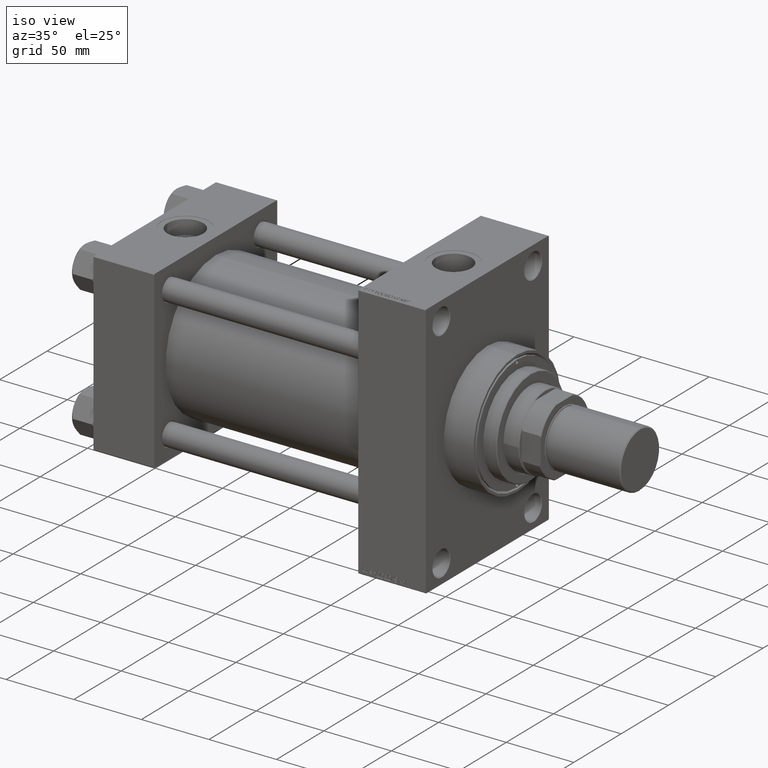
[diagram: clean part render]
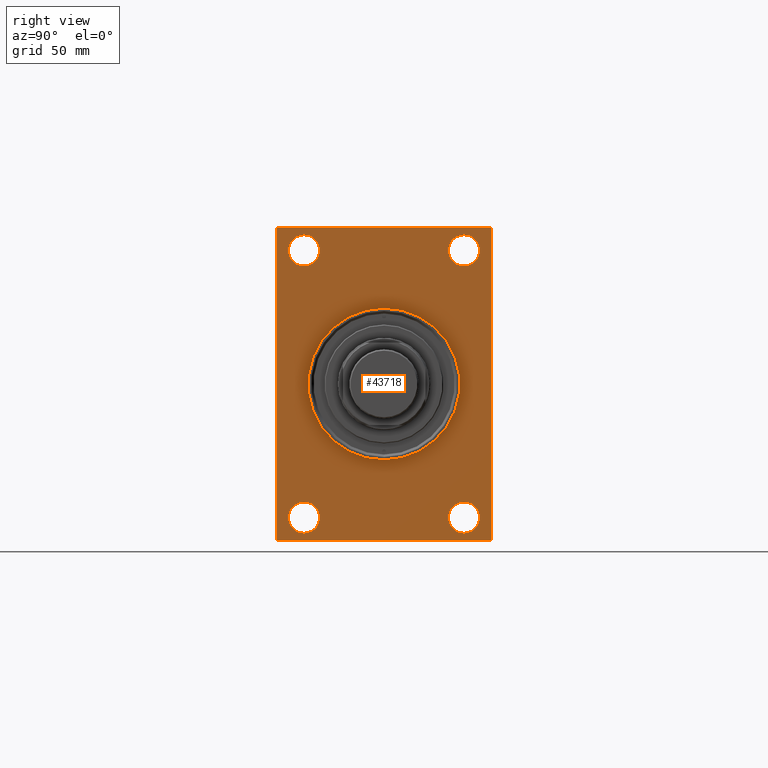
[diagram: tour spotlight — one face highlighted and labeled with its STEP entity id]
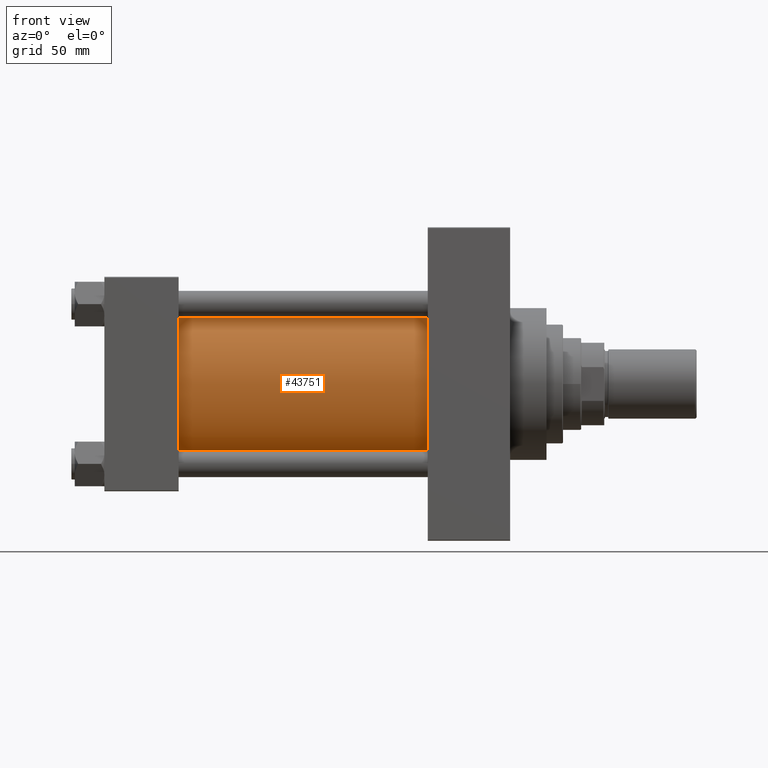
[diagram: tour spotlight — one face highlighted and labeled with its STEP entity id]
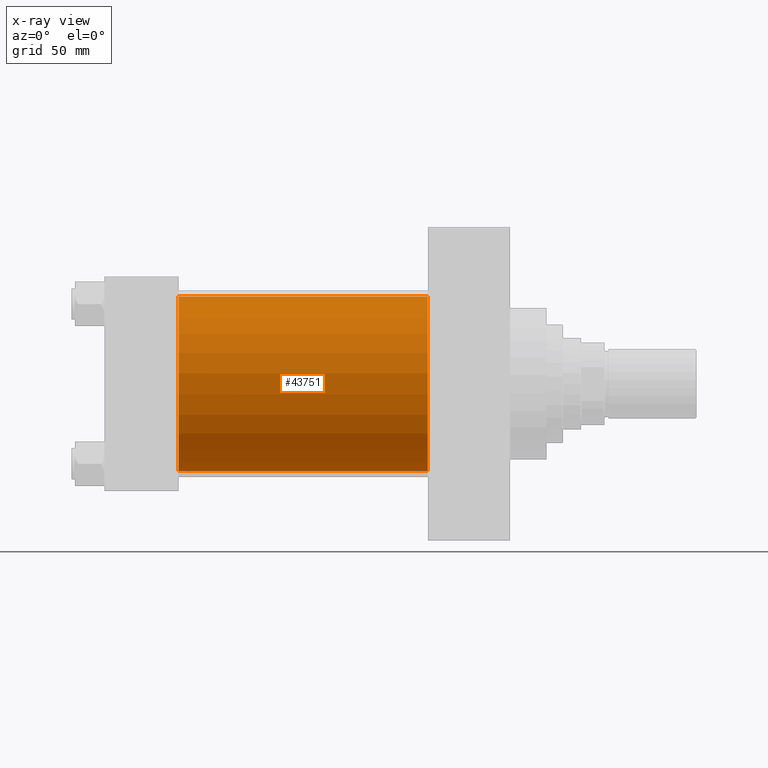
[diagram: x-ray of the same camera — body ghosted, this tour face saturated]
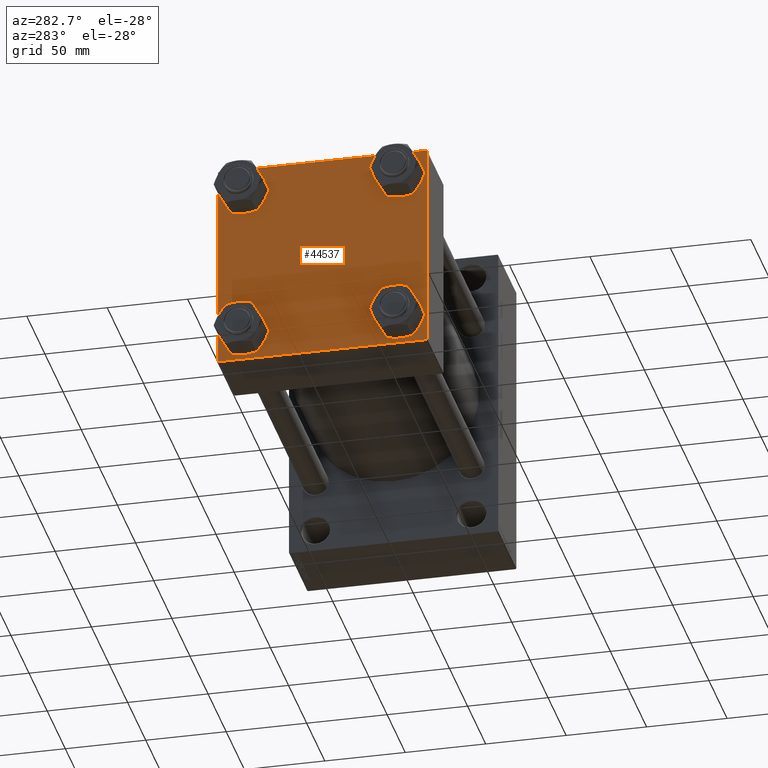
[diagram: tour spotlight — one face highlighted and labeled with its STEP entity id]
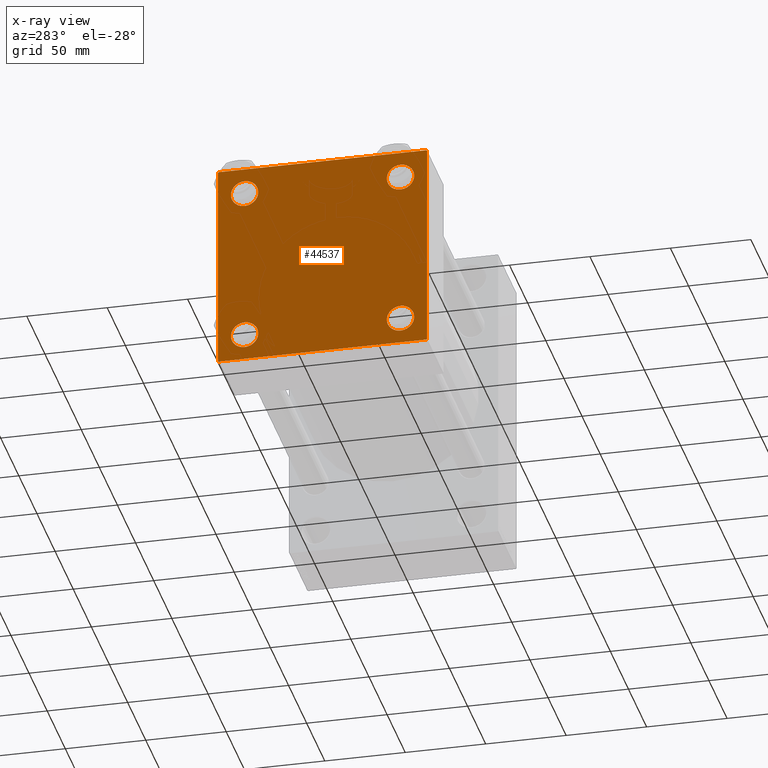
[diagram: x-ray of the same camera — body ghosted, this tour face saturated]
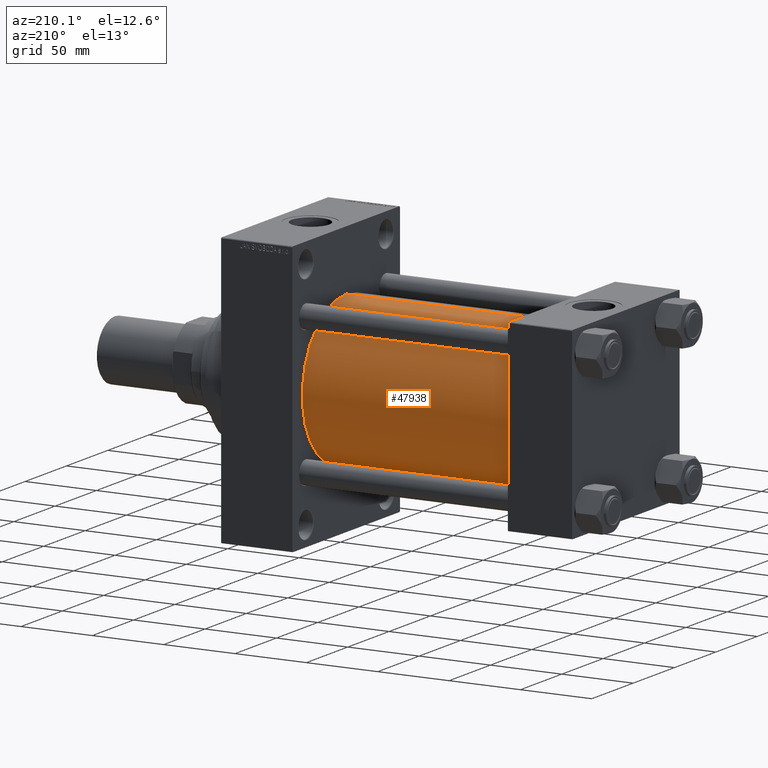
[diagram: tour spotlight — one face highlighted and labeled with its STEP entity id]
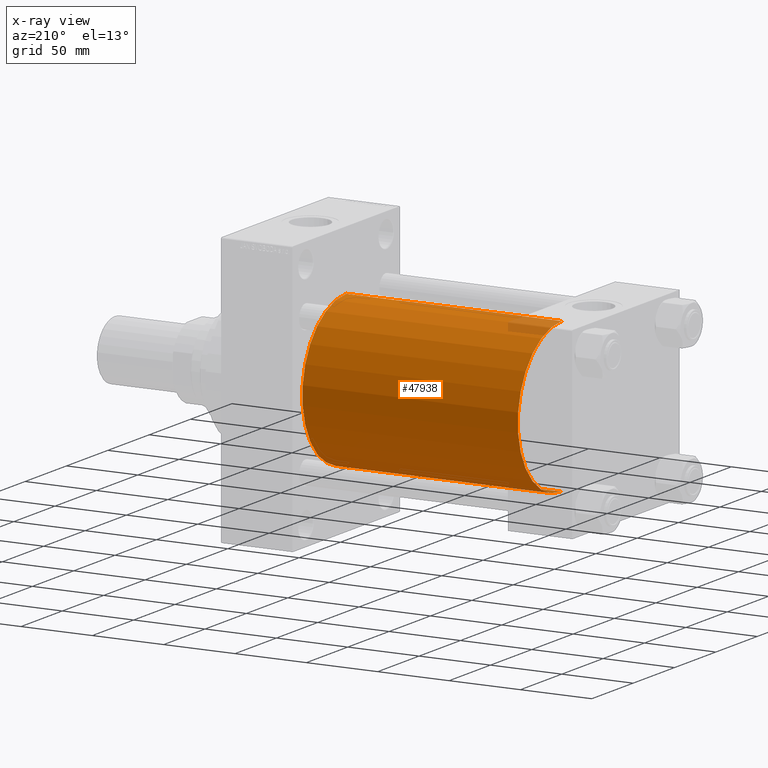
[diagram: x-ray of the same camera — body ghosted, this tour face saturated]
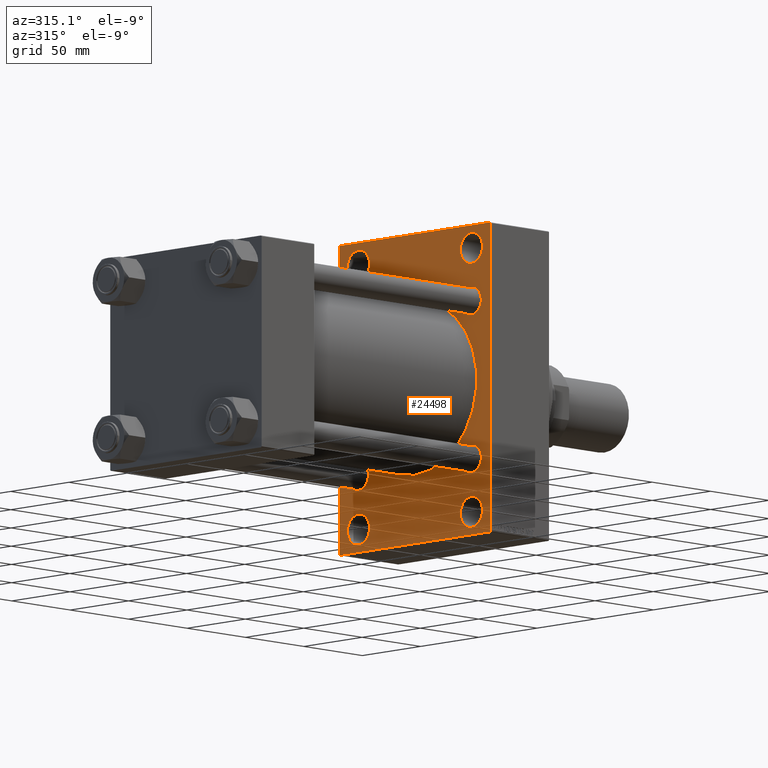
[diagram: tour spotlight — one face highlighted and labeled with its STEP entity id]
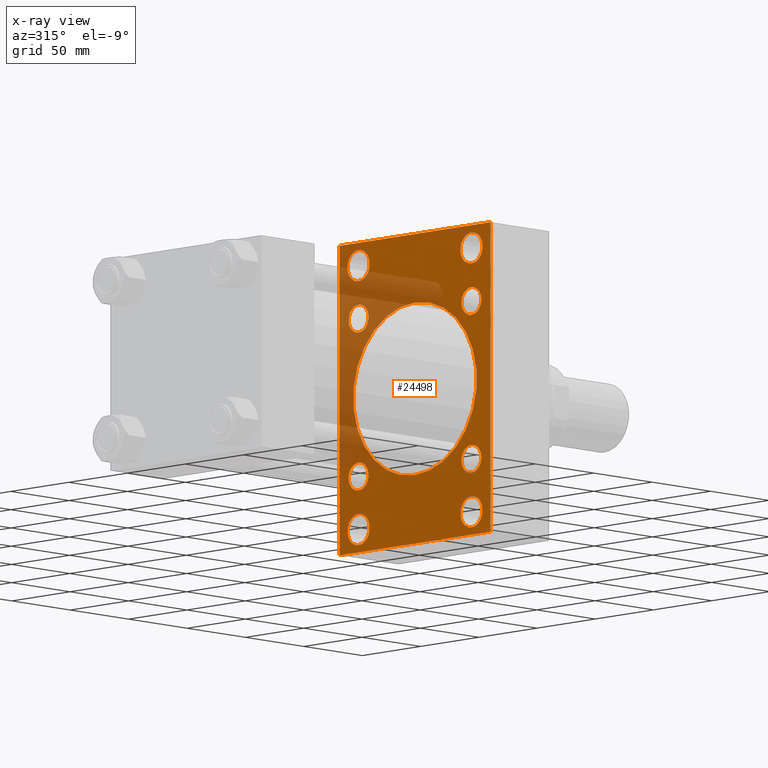
[diagram: x-ray of the same camera — body ghosted, this tour face saturated]
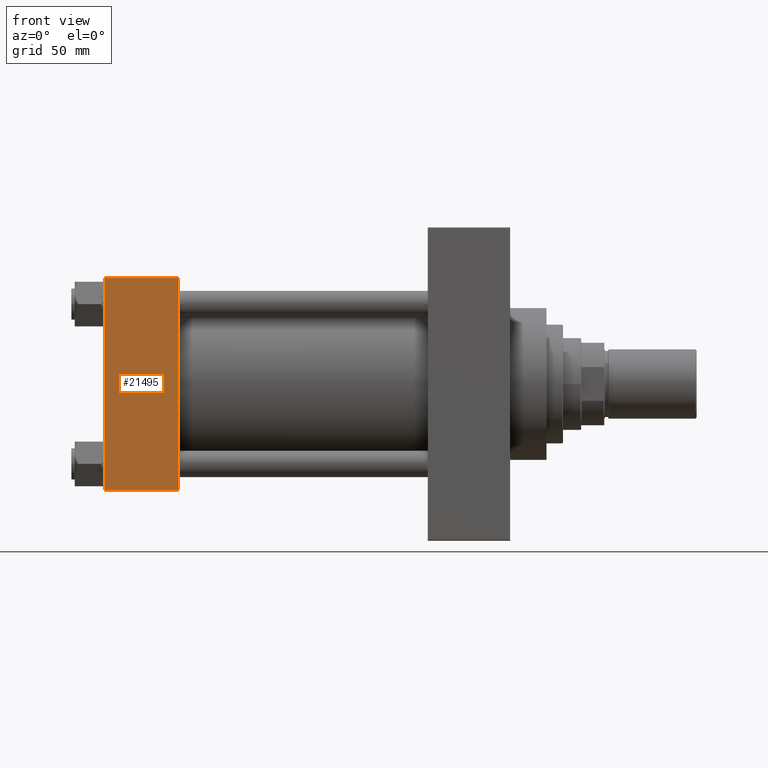
[diagram: tour spotlight — one face highlighted and labeled with its STEP entity id]
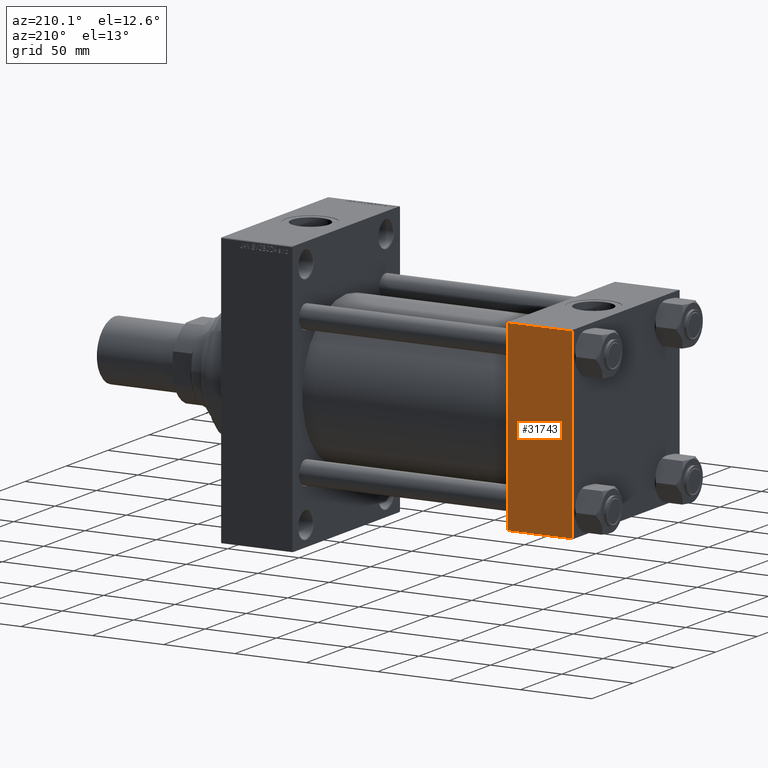
[diagram: tour spotlight — one face highlighted and labeled with its STEP entity id]
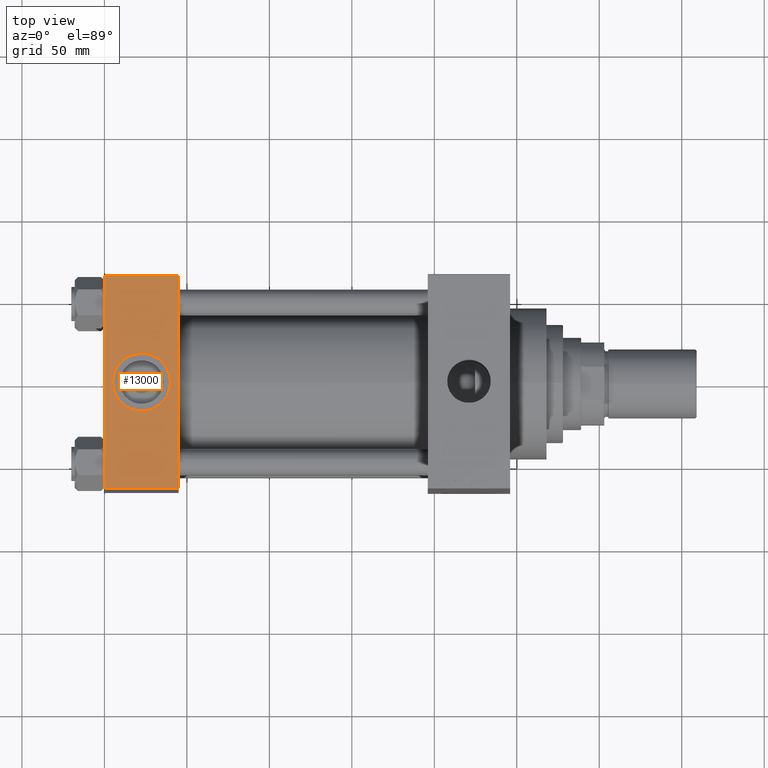
[diagram: tour spotlight — one face highlighted and labeled with its STEP entity id]
A machine part: a face-by-face anatomy tour. The part has 1173 B-rep faces; the first image is the clean iso view, then the 8 largest visible faces are spotlighted one at a time (largest first), each with its STEP entity span.

Face 1 — right view, entity #43718. In plain terms, the highlighted planar face has unit normal (-1, 0, 0).
Definition (entity closure, byte-faithful):
#263 = EDGE_CURVE ( 'NONE', #13229, #17802, #1799, .T. ) ;
#695 = CARTESIAN_POINT ( 'NONE',  ( 246.0000000000000000, -48.50000000000000000, 90.49999999999998579 ) ) ;
#825 = VERTEX_POINT ( 'NONE', #32274 ) ;
#954 = CARTESIAN_POINT ( 'NONE',  ( 246.0000000000000000, 48.50000000000000711, -90.50000000000000000 ) ) ;
#1294 = VERTEX_POINT ( 'NONE', #28181 ) ;
#1314 = ORIENTED_EDGE ( 'NONE', *, *, #16867, .T. ) ;
#1681 = LINE ( 'NONE', #47452, #2377 ) ;
#1799 = LINE ( 'NONE', #15763, #18213 ) ;
#2112 = DIRECTION ( 'NONE',  ( -1.000000000000000000, 0.000000000000000000, -0.000000000000000000 ) ) ;
#2125 = EDGE_CURVE ( 'NONE', #47922, #48464, #43201, .T. ) ;
#2171 = DIRECTION ( 'NONE',  ( 0.000000000000000000, -1.000000000000000000, 0.000000000000000000 ) ) ;
#2377 = VECTOR ( 'NONE', #2171, 1000.000000000000000 ) ;
#2528 = DIRECTION ( 'NONE',  ( -0.000000000000000000, 0.000000000000000000, 1.000000000000000000 ) ) ;
#2639 = EDGE_LOOP ( 'NONE', ( #44376, #46340 ) ) ;
#3696 = CARTESIAN_POINT ( 'NONE',  ( 246.0000000000000000, 48.50000000000000711, -71.50000000000004263 ) ) ;
#3762 = CARTESIAN_POINT ( 'NONE',  ( 246.0000000000000000, -64.50000000000001421, -95.00000000000002842 ) ) ;
#4094 = DIRECTION ( 'NONE',  ( 0.000000000000000000, 0.000000000000000000, 1.000000000000000000 ) ) ;
#4583 = CARTESIAN_POINT ( 'NONE',  ( 246.0000000000000000, 48.50000000000000711, 71.50000000000002842 ) ) ;
#4604 = EDGE_CURVE ( 'NONE', #7453, #38586, #22933, .T. ) ;
#4985 = VERTEX_POINT ( 'NONE', #954 ) ;
#5265 = DIRECTION ( 'NONE',  ( -0.000000000000000000, -0.7071067811865378028, -0.7071067811865573427 ) ) ;
#5297 = DIRECTION ( 'NONE',  ( 0.000000000000000000, 0.000000000000000000, 1.000000000000000000 ) ) ;
#5355 = VERTEX_POINT ( 'NONE', #42507 ) ;
#5471 = DIRECTION ( 'NONE',  ( 0.000000000000000000, -1.000000000000000000, -1.067522139062650425E-16 ) ) ;
#6113 = ORIENTED_EDGE ( 'NONE', *, *, #18323, .F. ) ;
#6270 = CARTESIAN_POINT ( 'NONE',  ( 246.0000000000000000, 48.50000000000000711, 81.00000000000000000 ) ) ;
#6422 = AXIS2_PLACEMENT_3D ( 'NONE', #34200, #24871, #5297 ) ;
#6864 = ORIENTED_EDGE ( 'NONE', *, *, #263, .T. ) ;
#6976 = ORIENTED_EDGE ( 'NONE', *, *, #39291, .T. ) ;
#7019 = EDGE_CURVE ( 'NONE', #4985, #35513, #18317, .T. ) ;
#7453 = VERTEX_POINT ( 'NONE', #41316 ) ;
#7826 = CIRCLE ( 'NONE', #43788, 9.499999999999980460 ) ;
#7974 = CIRCLE ( 'NONE', #8740, 9.499999999999980460 ) ;
#8120 = CARTESIAN_POINT ( 'NONE',  ( 246.0000000000000000, -48.50000000000000000, 81.00000000000000000 ) ) ;
#8724 = ORIENTED_EDGE ( 'NONE', *, *, #12338, .T. ) ;
#8740 = AXIS2_PLACEMENT_3D ( 'NONE', #8120, #11799, #8846 ) ;
#8846 = DIRECTION ( 'NONE',  ( 0.000000000000000000, 0.000000000000000000, 1.000000000000000000 ) ) ;
#9063 = CARTESIAN_POINT ( 'NONE',  ( 246.0000000000000000, -48.50000000000000000, 81.00000000000000000 ) ) ;
#9631 = PLANE ( 'NONE',  #21836 ) ;
#9964 = VECTOR ( 'NONE', #40744, 1000.000000000000114 ) ;
#10507 = CARTESIAN_POINT ( 'NONE',  ( 246.0000000000000000, 64.99999999999998579, -94.49999999999997158 ) ) ;
#11037 = DIRECTION ( 'NONE',  ( 0.000000000000000000, 7.304098846218135653E-17, -1.000000000000000000 ) ) ;
#11216 = DIRECTION ( 'NONE',  ( -1.000000000000000000, 0.000000000000000000, -0.000000000000000000 ) ) ;
#11761 = LINE ( 'NONE', #26679, #27549 ) ;
#11799 = DIRECTION ( 'NONE',  ( -1.000000000000000000, 0.000000000000000000, -0.000000000000000000 ) ) ;
#12006 = AXIS2_PLACEMENT_3D ( 'NONE', #21117, #39745, #39502 ) ;
#12211 = DIRECTION ( 'NONE',  ( 0.000000000000000000, 0.000000000000000000, -1.000000000000000000 ) ) ;
#12338 = EDGE_CURVE ( 'NONE', #13040, #26949, #19536, .T. ) ;
#13040 = VERTEX_POINT ( 'NONE', #24265 ) ;
#13229 = VERTEX_POINT ( 'NONE', #27822 ) ;
#13611 = AXIS2_PLACEMENT_3D ( 'NONE', #16533, #31463, #47120 ) ;
#13767 = CARTESIAN_POINT ( 'NONE',  ( 246.0000000000000000, -65.00000000000001421, -94.50000000000002842 ) ) ;
#14153 = CIRCLE ( 'NONE', #29775, 9.499999999999980460 ) ;
#14584 = VERTEX_POINT ( 'NONE', #15615 ) ;
#14832 = DIRECTION ( 'NONE',  ( 0.000000000000000000, 0.000000000000000000, 1.000000000000000000 ) ) ;
#15045 = AXIS2_PLACEMENT_3D ( 'NONE', #37651, #11216, #4094 ) ;
#15456 = ORIENTED_EDGE ( 'NONE', *, *, #23014, .T. ) ;
#15581 = VECTOR ( 'NONE', #5471, 1000.000000000000000 ) ;
#15586 = ORIENTED_EDGE ( 'NONE', *, *, #37202, .T. ) ;
#15615 = CARTESIAN_POINT ( 'NONE',  ( 246.0000000000000000, 5.633375276077824704E-15, -46.00000000000000000 ) ) ;
#15763 = CARTESIAN_POINT ( 'NONE',  ( 246.0000000000000000, 64.49999999999991473, 94.99999999999997158 ) ) ;
#16533 = CARTESIAN_POINT ( 'NONE',  ( 246.0000000000000000, 0.000000000000000000, 0.000000000000000000 ) ) ;
#16729 = DIRECTION ( 'NONE',  ( 0.000000000000000000, -0.7071067811865672237, 0.7071067811865279218 ) ) ;
#16867 = EDGE_CURVE ( 'NONE', #48464, #47922, #14153, .T. ) ;
#17454 = ORIENTED_EDGE ( 'NONE', *, *, #40459, .T. ) ;
#17802 = VERTEX_POINT ( 'NONE', #22230 ) ;
#18213 = VECTOR ( 'NONE', #16729, 1000.000000000000000 ) ;
#18317 = CIRCLE ( 'NONE', #45681, 9.499999999999980460 ) ;
#18323 = EDGE_CURVE ( 'NONE', #14584, #38778, #40815, .T. ) ;
#18718 = CARTESIAN_POINT ( 'NONE',  ( 246.0000000000000000, 48.50000000000000711, -81.00000000000001421 ) ) ;
#19536 = LINE ( 'NONE', #45978, #44478 ) ;
#19727 = EDGE_CURVE ( 'NONE', #35513, #4985, #41609, .T. ) ;
#20233 = CARTESIAN_POINT ( 'NONE',  ( 246.0000000000000000, 0.000000000000000000, 46.00000000000000000 ) ) ;
#20727 = EDGE_CURVE ( 'NONE', #13229, #40049, #11761, .T. ) ;
#21117 = CARTESIAN_POINT ( 'NONE',  ( 246.0000000000000000, -48.49999999999999289, -81.00000000000001421 ) ) ;
#21836 = AXIS2_PLACEMENT_3D ( 'NONE', #24312, #43893, #2528 ) ;
#22230 = CARTESIAN_POINT ( 'NONE',  ( 246.0000000000000000, 64.49999999999991473, 94.99999999999997158 ) ) ;
#22667 = VECTOR ( 'NONE', #25437, 1000.000000000000000 ) ;
#22688 = EDGE_LOOP ( 'NONE', ( #8724, #6976, #36081, #35155, #23403, #6864, #36497, #15586 ) ) ;
#22933 = CIRCLE ( 'NONE', #12006, 9.499999999999980460 ) ;
#23014 = EDGE_CURVE ( 'NONE', #37584, #5355, #7974, .T. ) ;
#23403 = ORIENTED_EDGE ( 'NONE', *, *, #20727, .F. ) ;
#23989 = DIRECTION ( 'NONE',  ( -1.000000000000000000, 0.000000000000000000, -0.000000000000000000 ) ) ;
#24064 = ORIENTED_EDGE ( 'NONE', *, *, #2125, .T. ) ;
#24265 = CARTESIAN_POINT ( 'NONE',  ( 246.0000000000000000, -65.00000000000001421, 94.49999999999997158 ) ) ;
#24312 = CARTESIAN_POINT ( 'NONE',  ( 246.0000000000000000, 0.000000000000000000, 0.000000000000000000 ) ) ;
#24534 = CIRCLE ( 'NONE', #13611, 46.00000000000000000 ) ;
#24740 = ORIENTED_EDGE ( 'NONE', *, *, #45118, .T. ) ;
#24871 = DIRECTION ( 'NONE',  ( -1.000000000000000000, 0.000000000000000000, -0.000000000000000000 ) ) ;
#25008 = DIRECTION ( 'NONE',  ( 0.000000000000000000, 0.000000000000000000, -1.000000000000000000 ) ) ;
#25045 = FACE_BOUND ( 'NONE', #29749, .T. ) ;
#25437 = DIRECTION ( 'NONE',  ( -0.000000000000000000, 0.7071067811865181518, 0.7071067811865769936 ) ) ;
#25820 = ORIENTED_EDGE ( 'NONE', *, *, #27860, .F. ) ;
#26232 = ORIENTED_EDGE ( 'NONE', *, *, #4604, .T. ) ;
#26679 = CARTESIAN_POINT ( 'NONE',  ( 246.0000000000000000, 64.99999999999997158, 94.99999999999997158 ) ) ;
#26949 = VERTEX_POINT ( 'NONE', #13767 ) ;
#27016 = EDGE_LOOP ( 'NONE', ( #17454, #15456 ) ) ;
#27549 = VECTOR ( 'NONE', #11037, 1000.000000000000000 ) ;
#27815 = DIRECTION ( 'NONE',  ( 0.000000000000000000, 0.000000000000000000, 1.000000000000000000 ) ) ;
#27822 = CARTESIAN_POINT ( 'NONE',  ( 246.0000000000000000, 64.99999999999997158, 94.49999999999994316 ) ) ;
#27860 = EDGE_CURVE ( 'NONE', #38778, #14584, #24534, .T. ) ;
#28181 = CARTESIAN_POINT ( 'NONE',  ( 246.0000000000000000, 64.49999999999998579, -95.00000000000001421 ) ) ;
#28478 = FACE_OUTER_BOUND ( 'NONE', #22688, .T. ) ;
#29175 = CARTESIAN_POINT ( 'NONE',  ( 246.0000000000000000, -48.49999999999999289, -71.50000000000004263 ) ) ;
#29177 = CARTESIAN_POINT ( 'NONE',  ( 246.0000000000000000, 0.000000000000000000, 0.000000000000000000 ) ) ;
#29712 = CARTESIAN_POINT ( 'NONE',  ( 246.0000000000000000, 48.50000000000000711, 90.49999999999998579 ) ) ;
#29749 = EDGE_LOOP ( 'NONE', ( #25820, #6113 ) ) ;
#29775 = AXIS2_PLACEMENT_3D ( 'NONE', #6270, #2112, #27815 ) ;
#31220 = LINE ( 'NONE', #34882, #45839 ) ;
#31463 = DIRECTION ( 'NONE',  ( 1.000000000000000000, 0.000000000000000000, 0.000000000000000000 ) ) ;
#31657 = FACE_BOUND ( 'NONE', #32325, .T. ) ;
#32197 = AXIS2_PLACEMENT_3D ( 'NONE', #29177, #44578, #25008 ) ;
#32274 = CARTESIAN_POINT ( 'NONE',  ( 246.0000000000000000, -64.50000000000002842, 94.99999999999997158 ) ) ;
#32325 = EDGE_LOOP ( 'NONE', ( #24064, #1314 ) ) ;
#32633 = FACE_BOUND ( 'NONE', #2639, .T. ) ;
#32932 = DIRECTION ( 'NONE',  ( -1.000000000000000000, 0.000000000000000000, -0.000000000000000000 ) ) ;
#33434 = DIRECTION ( 'NONE',  ( -1.000000000000000000, 0.000000000000000000, -0.000000000000000000 ) ) ;
#34152 = CARTESIAN_POINT ( 'NONE',  ( 246.0000000000000000, -48.49999999999999289, -81.00000000000001421 ) ) ;
#34200 = CARTESIAN_POINT ( 'NONE',  ( 246.0000000000000000, 48.50000000000000711, -81.00000000000001421 ) ) ;
#34605 = EDGE_LOOP ( 'NONE', ( #26232, #24740 ) ) ;
#34882 = CARTESIAN_POINT ( 'NONE',  ( 246.0000000000000000, -65.00000000000001421, 94.49999999999997158 ) ) ;
#35155 = ORIENTED_EDGE ( 'NONE', *, *, #45520, .T. ) ;
#35513 = VERTEX_POINT ( 'NONE', #3696 ) ;
#36081 = ORIENTED_EDGE ( 'NONE', *, *, #43484, .F. ) ;
#36497 = ORIENTED_EDGE ( 'NONE', *, *, #46878, .T. ) ;
#36628 = DIRECTION ( 'NONE',  ( 0.000000000000000000, 0.000000000000000000, 1.000000000000000000 ) ) ;
#36851 = CARTESIAN_POINT ( 'NONE',  ( 246.0000000000000000, -64.50000000000001421, -95.00000000000002842 ) ) ;
#37187 = LINE ( 'NONE', #10507, #22667 ) ;
#37202 = EDGE_CURVE ( 'NONE', #825, #13040, #31220, .T. ) ;
#37584 = VERTEX_POINT ( 'NONE', #695 ) ;
#37651 = CARTESIAN_POINT ( 'NONE',  ( 246.0000000000000000, 48.50000000000000711, 81.00000000000000000 ) ) ;
#38586 = VERTEX_POINT ( 'NONE', #29175 ) ;
#38778 = VERTEX_POINT ( 'NONE', #20233 ) ;
#38943 = DIRECTION ( 'NONE',  ( 0.000000000000000000, 0.000000000000000000, 1.000000000000000000 ) ) ;
#39291 = EDGE_CURVE ( 'NONE', #26949, #41606, #45119, .T. ) ;
#39502 = DIRECTION ( 'NONE',  ( 0.000000000000000000, 0.000000000000000000, 1.000000000000000000 ) ) ;
#39709 = AXIS2_PLACEMENT_3D ( 'NONE', #9063, #23989, #38943 ) ;
#39745 = DIRECTION ( 'NONE',  ( -1.000000000000000000, 0.000000000000000000, -0.000000000000000000 ) ) ;
#40049 = VERTEX_POINT ( 'NONE', #46328 ) ;
#40459 = EDGE_CURVE ( 'NONE', #5355, #37584, #45183, .T. ) ;
#40744 = DIRECTION ( 'NONE',  ( 0.000000000000000000, 0.7071067811865474617, -0.7071067811865474617 ) ) ;
#40815 = CIRCLE ( 'NONE', #32197, 46.00000000000000000 ) ;
#41316 = CARTESIAN_POINT ( 'NONE',  ( 246.0000000000000000, -48.49999999999999289, -90.50000000000000000 ) ) ;
#41606 = VERTEX_POINT ( 'NONE', #36851 ) ;
#41609 = CIRCLE ( 'NONE', #6422, 9.499999999999980460 ) ;
#41731 = LINE ( 'NONE', #45636, #15581 ) ;
#42507 = CARTESIAN_POINT ( 'NONE',  ( 246.0000000000000000, -48.50000000000000000, 71.50000000000002842 ) ) ;
#43201 = CIRCLE ( 'NONE', #15045, 9.499999999999980460 ) ;
#43484 = EDGE_CURVE ( 'NONE', #1294, #41606, #41731, .T. ) ;
#43650 = FACE_BOUND ( 'NONE', #27016, .T. ) ;
#43718 = ADVANCED_FACE ( 'NONE', ( #43650, #47567, #32633, #31657, #25045, #28478 ), #9631, .F. ) ;
#43788 = AXIS2_PLACEMENT_3D ( 'NONE', #34152, #33434, #14832 ) ;
#43893 = DIRECTION ( 'NONE',  ( -1.000000000000000000, 0.000000000000000000, -0.000000000000000000 ) ) ;
#44376 = ORIENTED_EDGE ( 'NONE', *, *, #7019, .T. ) ;
#44478 = VECTOR ( 'NONE', #12211, 1000.000000000000000 ) ;
#44578 = DIRECTION ( 'NONE',  ( 1.000000000000000000, 0.000000000000000000, 0.000000000000000000 ) ) ;
#45118 = EDGE_CURVE ( 'NONE', #38586, #7453, #7826, .T. ) ;
#45119 = LINE ( 'NONE', #3762, #9964 ) ;
#45183 = CIRCLE ( 'NONE', #39709, 9.499999999999980460 ) ;
#45520 = EDGE_CURVE ( 'NONE', #1294, #40049, #37187, .T. ) ;
#45636 = CARTESIAN_POINT ( 'NONE',  ( 246.0000000000000000, 64.99999999999998579, -95.00000000000001421 ) ) ;
#45681 = AXIS2_PLACEMENT_3D ( 'NONE', #18718, #32932, #36628 ) ;
#45839 = VECTOR ( 'NONE', #5265, 1000.000000000000000 ) ;
#45978 = CARTESIAN_POINT ( 'NONE',  ( 246.0000000000000000, -65.00000000000001421, 94.99999999999997158 ) ) ;
#46328 = CARTESIAN_POINT ( 'NONE',  ( 246.0000000000000000, 64.99999999999998579, -94.49999999999997158 ) ) ;
#46340 = ORIENTED_EDGE ( 'NONE', *, *, #19727, .T. ) ;
#46878 = EDGE_CURVE ( 'NONE', #17802, #825, #1681, .T. ) ;
#47120 = DIRECTION ( 'NONE',  ( 0.000000000000000000, 0.000000000000000000, -1.000000000000000000 ) ) ;
#47452 = CARTESIAN_POINT ( 'NONE',  ( 246.0000000000000000, 64.99999999999997158, 94.99999999999997158 ) ) ;
#47567 = FACE_BOUND ( 'NONE', #34605, .T. ) ;
#47922 = VERTEX_POINT ( 'NONE', #4583 ) ;
#48464 = VERTEX_POINT ( 'NONE', #29712 ) ;

Face 2 — front view, entity #43751. An x-ray twin of the same camera follows (body ghosted, this face saturated) — the face is partly hidden behind the body. In plain terms, the highlighted cylindrical surface (partial cylindrical patch) has radius 53 mm, axis along (-1, -0, -0).
Definition (entity closure, byte-faithful):
#1693 = VECTOR ( 'NONE', #3214, 1000.000000000000000 ) ;
#3214 = DIRECTION ( 'NONE',  ( -1.000000000000000000, -0.000000000000000000, -0.000000000000000000 ) ) ;
#3306 = VERTEX_POINT ( 'NONE', #29532 ) ;
#4105 = AXIS2_PLACEMENT_3D ( 'NONE', #17351, #25669, #6589 ) ;
#5598 = CARTESIAN_POINT ( 'NONE',  ( 196.0000000000000000, -2.602085213965210642E-15, 53.00000000000000711 ) ) ;
#5789 = EDGE_CURVE ( 'NONE', #16548, #21040, #9513, .T. ) ;
#6197 = FACE_OUTER_BOUND ( 'NONE', #33879, .T. ) ;
#6589 = DIRECTION ( 'NONE',  ( 0.000000000000000000, 0.000000000000000000, 1.000000000000000000 ) ) ;
#6968 = AXIS2_PLACEMENT_3D ( 'NONE', #21376, #39994, #39508 ) ;
#9513 = LINE ( 'NONE', #5598, #33148 ) ;
#11079 = ORIENTED_EDGE ( 'NONE', *, *, #18387, .F. ) ;
#11505 = CIRCLE ( 'NONE', #38872, 53.00000000000000711 ) ;
#16548 = VERTEX_POINT ( 'NONE', #42626 ) ;
#17351 = CARTESIAN_POINT ( 'NONE',  ( 44.99999999999998579, -2.602085213965210642E-15, 0.000000000000000000 ) ) ;
#17899 = CARTESIAN_POINT ( 'NONE',  ( 196.0000000000000000, -2.602085213965210642E-15, 0.000000000000000000 ) ) ;
#18387 = EDGE_CURVE ( 'NONE', #19481, #3306, #40678, .T. ) ;
#19481 = VERTEX_POINT ( 'NONE', #43101 ) ;
#20521 = DIRECTION ( 'NONE',  ( -1.000000000000000000, -0.000000000000000000, -0.000000000000000000 ) ) ;
#20853 = EDGE_CURVE ( 'NONE', #21040, #3306, #32270, .T. ) ;
#21040 = VERTEX_POINT ( 'NONE', #29709 ) ;
#21376 = CARTESIAN_POINT ( 'NONE',  ( 196.0000000000000000, -2.602085213965210642E-15, 0.000000000000000000 ) ) ;
#24106 = ORIENTED_EDGE ( 'NONE', *, *, #38613, .F. ) ;
#25669 = DIRECTION ( 'NONE',  ( 1.000000000000000000, -0.000000000000000000, 0.000000000000000000 ) ) ;
#29532 = CARTESIAN_POINT ( 'NONE',  ( 44.99999999999998579, 3.888542821515762466E-15, -53.00000000000000711 ) ) ;
#29709 = CARTESIAN_POINT ( 'NONE',  ( 44.99999999999998579, -2.602085213965210642E-15, 53.00000000000000711 ) ) ;
#32270 = CIRCLE ( 'NONE', #4105, 53.00000000000000711 ) ;
#32834 = DIRECTION ( 'NONE',  ( 1.000000000000000000, 0.000000000000000000, 0.000000000000000000 ) ) ;
#33148 = VECTOR ( 'NONE', #20521, 1000.000000000000000 ) ;
#33879 = EDGE_LOOP ( 'NONE', ( #11079, #24106, #43328, #35445 ) ) ;
#35445 = ORIENTED_EDGE ( 'NONE', *, *, #20853, .T. ) ;
#35581 = CYLINDRICAL_SURFACE ( 'NONE', #6968, 53.00000000000000711 ) ;
#36289 = CARTESIAN_POINT ( 'NONE',  ( 196.0000000000000000, 3.888542821515762466E-15, -53.00000000000000711 ) ) ;
#38613 = EDGE_CURVE ( 'NONE', #16548, #19481, #11505, .T. ) ;
#38872 = AXIS2_PLACEMENT_3D ( 'NONE', #17899, #32834, #44103 ) ;
#39508 = DIRECTION ( 'NONE',  ( 0.000000000000000000, 0.000000000000000000, 1.000000000000000000 ) ) ;
#39994 = DIRECTION ( 'NONE',  ( -1.000000000000000000, -0.000000000000000000, -0.000000000000000000 ) ) ;
#40678 = LINE ( 'NONE', #36289, #1693 ) ;
#42626 = CARTESIAN_POINT ( 'NONE',  ( 196.0000000000000000, -2.602085213965210642E-15, 53.00000000000000711 ) ) ;
#43101 = CARTESIAN_POINT ( 'NONE',  ( 196.0000000000000000, 3.888542821515762466E-15, -53.00000000000000711 ) ) ;
#43328 = ORIENTED_EDGE ( 'NONE', *, *, #5789, .T. ) ;
#43751 = ADVANCED_FACE ( 'NONE', ( #6197 ), #35581, .T. ) ;
#44103 = DIRECTION ( 'NONE',  ( 0.000000000000000000, 0.000000000000000000, -1.000000000000000000 ) ) ;

Face 3 — auxiliary view, entity #44537. An x-ray twin of the same camera follows (body ghosted, this face saturated) — the face is partly hidden behind the body. In plain terms, the highlighted planar face has unit normal (-1, 0, 0).
Definition (entity closure, byte-faithful):
#385 = CARTESIAN_POINT ( 'NONE',  ( 0.000000000000000000, 48.45000000000000995, -48.45000000000001705 ) ) ;
#644 = ORIENTED_EDGE ( 'NONE', *, *, #41382, .T. ) ;
#708 = EDGE_LOOP ( 'NONE', ( #26132, #39078 ) ) ;
#722 = PLANE ( 'NONE',  #27316 ) ;
#763 = VERTEX_POINT ( 'NONE', #32023 ) ;
#1005 = VERTEX_POINT ( 'NONE', #32520 ) ;
#1057 = CARTESIAN_POINT ( 'NONE',  ( 0.000000000000000000, -48.44999999999999574, -48.45000000000003126 ) ) ;
#1848 = ORIENTED_EDGE ( 'NONE', *, *, #45471, .T. ) ;
#2318 = DIRECTION ( 'NONE',  ( 0.000000000000000000, 0.000000000000000000, 1.000000000000000000 ) ) ;
#2560 = CARTESIAN_POINT ( 'NONE',  ( 0.000000000000000000, -48.44999999999999574, -48.45000000000003126 ) ) ;
#2844 = CARTESIAN_POINT ( 'NONE',  ( 0.000000000000000000, 64.74999999999998579, 64.74999999999998579 ) ) ;
#3319 = EDGE_LOOP ( 'NONE', ( #26845, #21833 ) ) ;
#3679 = FACE_BOUND ( 'NONE', #708, .T. ) ;
#3745 = DIRECTION ( 'NONE',  ( 1.000000000000000000, -0.000000000000000000, 0.000000000000000000 ) ) ;
#4162 = FACE_BOUND ( 'NONE', #45209, .T. ) ;
#4535 = VECTOR ( 'NONE', #34410, 1000.000000000000000 ) ;
#4726 = DIRECTION ( 'NONE',  ( 0.000000000000000000, 0.000000000000000000, 1.000000000000000000 ) ) ;
#5894 = EDGE_CURVE ( 'NONE', #17398, #30586, #19832, .T. ) ;
#6295 = CARTESIAN_POINT ( 'NONE',  ( 0.000000000000000000, -64.75000000000176215, -64.74999999999816680 ) ) ;
#6427 = CARTESIAN_POINT ( 'NONE',  ( 0.000000000000000000, 65.00000000000000000, 65.00000000000001421 ) ) ;
#6523 = VECTOR ( 'NONE', #21781, 1000.000000000000000 ) ;
#6738 = ORIENTED_EDGE ( 'NONE', *, *, #26902, .T. ) ;
#6740 = VERTEX_POINT ( 'NONE', #17353 ) ;
#6951 = DIRECTION ( 'NONE',  ( 1.000000000000000000, -0.000000000000000000, 0.000000000000000000 ) ) ;
#7685 = CIRCLE ( 'NONE', #41313, 8.500000000000007105 ) ;
#8039 = DIRECTION ( 'NONE',  ( 1.000000000000000000, -0.000000000000000000, 0.000000000000000000 ) ) ;
#8611 = VECTOR ( 'NONE', #17764, 1000.000000000000114 ) ;
#8701 = CARTESIAN_POINT ( 'NONE',  ( 0.000000000000000000, 65.00000000000000000, 65.00000000000001421 ) ) ;
#9728 = DIRECTION ( 'NONE',  ( 0.000000000000000000, -0.7071067811865279218, 0.7071067811865671127 ) ) ;
#9771 = LINE ( 'NONE', #24212, #10950 ) ;
#10238 = EDGE_LOOP ( 'NONE', ( #29812, #28357 ) ) ;
#10950 = VECTOR ( 'NONE', #39162, 1000.000000000000114 ) ;
#10957 = VERTEX_POINT ( 'NONE', #41826 ) ;
#12927 = VERTEX_POINT ( 'NONE', #30418 ) ;
#13861 = LINE ( 'NONE', #2844, #8611 ) ;
#13904 = EDGE_CURVE ( 'NONE', #1005, #10957, #48461, .T. ) ;
#14151 = CARTESIAN_POINT ( 'NONE',  ( 0.000000000000000000, 48.45000000000000995, -39.95000000000000284 ) ) ;
#15302 = LINE ( 'NONE', #34860, #45515 ) ;
#15575 = EDGE_CURVE ( 'NONE', #31686, #763, #43260, .T. ) ;
#16160 = EDGE_CURVE ( 'NONE', #44203, #34616, #13861, .T. ) ;
#17353 = CARTESIAN_POINT ( 'NONE',  ( 0.000000000000000000, -64.49999999999997158, 65.00000000000000000 ) ) ;
#17398 = VERTEX_POINT ( 'NONE', #29939 ) ;
#17764 = DIRECTION ( 'NONE',  ( 0.000000000000000000, 0.7071067811865474617, -0.7071067811865474617 ) ) ;
#17978 = AXIS2_PLACEMENT_3D ( 'NONE', #29942, #6951, #33856 ) ;
#18099 = VERTEX_POINT ( 'NONE', #46909 ) ;
#18604 = FACE_BOUND ( 'NONE', #10238, .T. ) ;
#19761 = DIRECTION ( 'NONE',  ( 0.000000000000000000, 0.000000000000000000, 1.000000000000000000 ) ) ;
#19798 = CIRCLE ( 'NONE', #47180, 8.500000000000007105 ) ;
#19832 = CIRCLE ( 'NONE', #30803, 8.500000000000007105 ) ;
#19854 = DIRECTION ( 'NONE',  ( 0.000000000000000000, 0.000000000000000000, 1.000000000000000000 ) ) ;
#19950 = EDGE_CURVE ( 'NONE', #12927, #31686, #15302, .T. ) ;
#19991 = ORIENTED_EDGE ( 'NONE', *, *, #25400, .T. ) ;
#20049 = CARTESIAN_POINT ( 'NONE',  ( 0.000000000000000000, -48.44999999999999574, 48.45000000000003126 ) ) ;
#20119 = DIRECTION ( 'NONE',  ( 0.000000000000000000, 0.000000000000000000, 1.000000000000000000 ) ) ;
#21781 = DIRECTION ( 'NONE',  ( 0.000000000000000000, 0.000000000000000000, -1.000000000000000000 ) ) ;
#21833 = ORIENTED_EDGE ( 'NONE', *, *, #31813, .T. ) ;
#22519 = CARTESIAN_POINT ( 'NONE',  ( 0.000000000000000000, 0.000000000000000000, 0.000000000000000000 ) ) ;
#24212 = CARTESIAN_POINT ( 'NONE',  ( 0.000000000000000000, 64.74999999999997158, -64.74999999999997158 ) ) ;
#24264 = VECTOR ( 'NONE', #9728, 1000.000000000000000 ) ;
#24722 = LINE ( 'NONE', #40163, #6523 ) ;
#24760 = CARTESIAN_POINT ( 'NONE',  ( 0.000000000000000000, -48.44999999999999574, -39.95000000000001705 ) ) ;
#25246 = VECTOR ( 'NONE', #43870, 1000.000000000000000 ) ;
#25344 = EDGE_CURVE ( 'NONE', #44203, #6740, #28207, .T. ) ;
#25400 = EDGE_CURVE ( 'NONE', #29501, #18099, #41663, .T. ) ;
#26132 = ORIENTED_EDGE ( 'NONE', *, *, #35626, .T. ) ;
#26434 = DIRECTION ( 'NONE',  ( -0.000000000000000000, 0.000000000000000000, 1.000000000000000000 ) ) ;
#26469 = EDGE_CURVE ( 'NONE', #29260, #763, #24722, .T. ) ;
#26751 = CARTESIAN_POINT ( 'NONE',  ( 0.000000000000000000, -48.44999999999999574, -56.95000000000003837 ) ) ;
#26785 = CARTESIAN_POINT ( 'NONE',  ( 0.000000000000000000, -48.44999999999999574, 56.95000000000003837 ) ) ;
#26845 = ORIENTED_EDGE ( 'NONE', *, *, #13904, .T. ) ;
#26902 = EDGE_CURVE ( 'NONE', #18099, #29501, #19798, .T. ) ;
#27316 = AXIS2_PLACEMENT_3D ( 'NONE', #22519, #38433, #26434 ) ;
#27475 = DIRECTION ( 'NONE',  ( 1.000000000000000000, -0.000000000000000000, 0.000000000000000000 ) ) ;
#28162 = DIRECTION ( 'NONE',  ( -0.000000000000000000, 0.7071067811865672237, 0.7071067811865279218 ) ) ;
#28207 = LINE ( 'NONE', #6427, #25246 ) ;
#28357 = ORIENTED_EDGE ( 'NONE', *, *, #33220, .T. ) ;
#29260 = VERTEX_POINT ( 'NONE', #41342 ) ;
#29501 = VERTEX_POINT ( 'NONE', #14151 ) ;
#29705 = CARTESIAN_POINT ( 'NONE',  ( 0.000000000000000000, 48.45000000000000995, 48.45000000000001705 ) ) ;
#29812 = ORIENTED_EDGE ( 'NONE', *, *, #41744, .T. ) ;
#29939 = CARTESIAN_POINT ( 'NONE',  ( 0.000000000000000000, -48.44999999999999574, 39.95000000000001705 ) ) ;
#29942 = CARTESIAN_POINT ( 'NONE',  ( 0.000000000000000000, 48.45000000000000995, 48.45000000000001705 ) ) ;
#30115 = FACE_OUTER_BOUND ( 'NONE', #47385, .T. ) ;
#30418 = CARTESIAN_POINT ( 'NONE',  ( 0.000000000000000000, 64.49999999999997158, -64.99999999999998579 ) ) ;
#30458 = ORIENTED_EDGE ( 'NONE', *, *, #19950, .T. ) ;
#30586 = VERTEX_POINT ( 'NONE', #26785 ) ;
#30803 = AXIS2_PLACEMENT_3D ( 'NONE', #43539, #44031, #43785 ) ;
#30840 = FACE_BOUND ( 'NONE', #3319, .T. ) ;
#31254 = CARTESIAN_POINT ( 'NONE',  ( 0.000000000000000000, -64.49999999999994316, -65.00000000000000000 ) ) ;
#31686 = VERTEX_POINT ( 'NONE', #31254 ) ;
#31760 = AXIS2_PLACEMENT_3D ( 'NONE', #2560, #43436, #2318 ) ;
#31813 = EDGE_CURVE ( 'NONE', #10957, #1005, #37963, .T. ) ;
#32023 = CARTESIAN_POINT ( 'NONE',  ( 0.000000000000000000, -65.00000000000000000, -64.49999999999991473 ) ) ;
#32321 = LINE ( 'NONE', #47249, #32781 ) ;
#32520 = CARTESIAN_POINT ( 'NONE',  ( 0.000000000000000000, 48.45000000000000995, 56.95000000000002416 ) ) ;
#32679 = VERTEX_POINT ( 'NONE', #24760 ) ;
#32781 = VECTOR ( 'NONE', #28162, 1000.000000000000000 ) ;
#33220 = EDGE_CURVE ( 'NONE', #33478, #32679, #34148, .T. ) ;
#33478 = VERTEX_POINT ( 'NONE', #26751 ) ;
#33856 = DIRECTION ( 'NONE',  ( 0.000000000000000000, 0.000000000000000000, 1.000000000000000000 ) ) ;
#33910 = DIRECTION ( 'NONE',  ( 0.000000000000000000, -1.000000000000000000, -1.067522139062650425E-16 ) ) ;
#34148 = CIRCLE ( 'NONE', #31760, 8.500000000000007105 ) ;
#34410 = DIRECTION ( 'NONE',  ( 0.000000000000000000, 0.000000000000000000, -1.000000000000000000 ) ) ;
#34470 = CARTESIAN_POINT ( 'NONE',  ( 0.000000000000000000, 48.45000000000000995, -48.45000000000001705 ) ) ;
#34616 = VERTEX_POINT ( 'NONE', #47360 ) ;
#34860 = CARTESIAN_POINT ( 'NONE',  ( 0.000000000000000000, 65.00000000000000000, -64.99999999999998579 ) ) ;
#35626 = EDGE_CURVE ( 'NONE', #30586, #17398, #43471, .T. ) ;
#37932 = ORIENTED_EDGE ( 'NONE', *, *, #43088, .T. ) ;
#37963 = CIRCLE ( 'NONE', #44219, 8.500000000000007105 ) ;
#38100 = LINE ( 'NONE', #8701, #4535 ) ;
#38354 = VERTEX_POINT ( 'NONE', #44636 ) ;
#38433 = DIRECTION ( 'NONE',  ( -1.000000000000000000, 0.000000000000000000, -0.000000000000000000 ) ) ;
#38447 = DIRECTION ( 'NONE',  ( 0.000000000000000000, 0.000000000000000000, 1.000000000000000000 ) ) ;
#39078 = ORIENTED_EDGE ( 'NONE', *, *, #5894, .T. ) ;
#39082 = ORIENTED_EDGE ( 'NONE', *, *, #16160, .T. ) ;
#39162 = DIRECTION ( 'NONE',  ( -0.000000000000000000, -0.7071067811865474617, -0.7071067811865474617 ) ) ;
#40163 = CARTESIAN_POINT ( 'NONE',  ( 0.000000000000000000, -65.00000000000000000, 65.00000000000000000 ) ) ;
#40349 = AXIS2_PLACEMENT_3D ( 'NONE', #20049, #45299, #38447 ) ;
#40719 = CARTESIAN_POINT ( 'NONE',  ( 0.000000000000000000, 64.49999999999997158, 65.00000000000001421 ) ) ;
#41254 = ORIENTED_EDGE ( 'NONE', *, *, #15575, .T. ) ;
#41313 = AXIS2_PLACEMENT_3D ( 'NONE', #1057, #45619, #4726 ) ;
#41342 = CARTESIAN_POINT ( 'NONE',  ( 0.000000000000000000, -65.00000000000000000, 64.50000000000000000 ) ) ;
#41382 = EDGE_CURVE ( 'NONE', #34616, #38354, #38100, .T. ) ;
#41663 = CIRCLE ( 'NONE', #44011, 8.500000000000007105 ) ;
#41744 = EDGE_CURVE ( 'NONE', #32679, #33478, #7685, .T. ) ;
#41826 = CARTESIAN_POINT ( 'NONE',  ( 0.000000000000000000, 48.45000000000000995, 39.95000000000000284 ) ) ;
#43088 = EDGE_CURVE ( 'NONE', #29260, #6740, #32321, .T. ) ;
#43260 = LINE ( 'NONE', #6295, #24264 ) ;
#43295 = ORIENTED_EDGE ( 'NONE', *, *, #25344, .F. ) ;
#43436 = DIRECTION ( 'NONE',  ( 1.000000000000000000, -0.000000000000000000, 0.000000000000000000 ) ) ;
#43471 = CIRCLE ( 'NONE', #40349, 8.500000000000007105 ) ;
#43539 = CARTESIAN_POINT ( 'NONE',  ( 0.000000000000000000, -48.44999999999999574, 48.45000000000003126 ) ) ;
#43785 = DIRECTION ( 'NONE',  ( 0.000000000000000000, 0.000000000000000000, 1.000000000000000000 ) ) ;
#43870 = DIRECTION ( 'NONE',  ( 0.000000000000000000, -1.000000000000000000, -1.067522139062650425E-16 ) ) ;
#44011 = AXIS2_PLACEMENT_3D ( 'NONE', #34470, #8039, #19761 ) ;
#44031 = DIRECTION ( 'NONE',  ( 1.000000000000000000, -0.000000000000000000, 0.000000000000000000 ) ) ;
#44203 = VERTEX_POINT ( 'NONE', #40719 ) ;
#44219 = AXIS2_PLACEMENT_3D ( 'NONE', #29705, #3745, #19854 ) ;
#44537 = ADVANCED_FACE ( 'NONE', ( #3679, #18604, #4162, #30840, #30115 ), #722, .T. ) ;
#44636 = CARTESIAN_POINT ( 'NONE',  ( 0.000000000000000000, 65.00000000000000000, -64.49999999999995737 ) ) ;
#45209 = EDGE_LOOP ( 'NONE', ( #19991, #6738 ) ) ;
#45299 = DIRECTION ( 'NONE',  ( 1.000000000000000000, -0.000000000000000000, 0.000000000000000000 ) ) ;
#45471 = EDGE_CURVE ( 'NONE', #38354, #12927, #9771, .T. ) ;
#45515 = VECTOR ( 'NONE', #33910, 1000.000000000000000 ) ;
#45619 = DIRECTION ( 'NONE',  ( 1.000000000000000000, -0.000000000000000000, 0.000000000000000000 ) ) ;
#45989 = ORIENTED_EDGE ( 'NONE', *, *, #26469, .F. ) ;
#46909 = CARTESIAN_POINT ( 'NONE',  ( 0.000000000000000000, 48.45000000000000995, -56.95000000000002416 ) ) ;
#47180 = AXIS2_PLACEMENT_3D ( 'NONE', #385, #27475, #20119 ) ;
#47249 = CARTESIAN_POINT ( 'NONE',  ( -0.000000000000000000, -64.74999999999819522, 64.75000000000179057 ) ) ;
#47360 = CARTESIAN_POINT ( 'NONE',  ( 0.000000000000000000, 65.00000000000000000, 64.49999999999998579 ) ) ;
#47385 = EDGE_LOOP ( 'NONE', ( #644, #1848, #30458, #41254, #45989, #37932, #43295, #39082 ) ) ;
#48461 = CIRCLE ( 'NONE', #17978, 8.500000000000007105 ) ;

Face 4 — auxiliary view, entity #47938. An x-ray twin of the same camera follows (body ghosted, this face saturated) — the face is partly hidden behind the body. In plain terms, the highlighted cylindrical surface (partial cylindrical patch) has radius 53 mm, axis along (-1, -0, -0).
Definition (entity closure, byte-faithful):
#1693 = VECTOR ( 'NONE', #3214, 1000.000000000000000 ) ;
#3214 = DIRECTION ( 'NONE',  ( -1.000000000000000000, -0.000000000000000000, -0.000000000000000000 ) ) ;
#3306 = VERTEX_POINT ( 'NONE', #29532 ) ;
#4192 = DIRECTION ( 'NONE',  ( 1.000000000000000000, 0.000000000000000000, 0.000000000000000000 ) ) ;
#4388 = ORIENTED_EDGE ( 'NONE', *, *, #30304, .T. ) ;
#5598 = CARTESIAN_POINT ( 'NONE',  ( 196.0000000000000000, -2.602085213965210642E-15, 53.00000000000000711 ) ) ;
#5789 = EDGE_CURVE ( 'NONE', #16548, #21040, #9513, .T. ) ;
#7764 = CARTESIAN_POINT ( 'NONE',  ( 44.99999999999998579, -2.602085213965210642E-15, 0.000000000000000000 ) ) ;
#8737 = DIRECTION ( 'NONE',  ( -1.000000000000000000, -0.000000000000000000, -0.000000000000000000 ) ) ;
#9513 = LINE ( 'NONE', #5598, #33148 ) ;
#10772 = CIRCLE ( 'NONE', #20142, 53.00000000000000711 ) ;
#11365 = AXIS2_PLACEMENT_3D ( 'NONE', #7764, #15590, #18777 ) ;
#15590 = DIRECTION ( 'NONE',  ( 1.000000000000000000, -0.000000000000000000, 0.000000000000000000 ) ) ;
#15838 = CYLINDRICAL_SURFACE ( 'NONE', #20380, 53.00000000000000711 ) ;
#16548 = VERTEX_POINT ( 'NONE', #42626 ) ;
#18378 = CIRCLE ( 'NONE', #11365, 53.00000000000000711 ) ;
#18387 = EDGE_CURVE ( 'NONE', #19481, #3306, #40678, .T. ) ;
#18777 = DIRECTION ( 'NONE',  ( 0.000000000000000000, 0.000000000000000000, 1.000000000000000000 ) ) ;
#19481 = VERTEX_POINT ( 'NONE', #43101 ) ;
#20142 = AXIS2_PLACEMENT_3D ( 'NONE', #37503, #4192, #29672 ) ;
#20380 = AXIS2_PLACEMENT_3D ( 'NONE', #30782, #8737, #45706 ) ;
#20521 = DIRECTION ( 'NONE',  ( -1.000000000000000000, -0.000000000000000000, -0.000000000000000000 ) ) ;
#21040 = VERTEX_POINT ( 'NONE', #29709 ) ;
#22683 = ORIENTED_EDGE ( 'NONE', *, *, #5789, .F. ) ;
#29532 = CARTESIAN_POINT ( 'NONE',  ( 44.99999999999998579, 3.888542821515762466E-15, -53.00000000000000711 ) ) ;
#29672 = DIRECTION ( 'NONE',  ( 0.000000000000000000, 0.000000000000000000, -1.000000000000000000 ) ) ;
#29709 = CARTESIAN_POINT ( 'NONE',  ( 44.99999999999998579, -2.602085213965210642E-15, 53.00000000000000711 ) ) ;
#30304 = EDGE_CURVE ( 'NONE', #3306, #21040, #18378, .T. ) ;
#30782 = CARTESIAN_POINT ( 'NONE',  ( 196.0000000000000000, -2.602085213965210642E-15, 0.000000000000000000 ) ) ;
#31260 = FACE_OUTER_BOUND ( 'NONE', #41895, .T. ) ;
#33148 = VECTOR ( 'NONE', #20521, 1000.000000000000000 ) ;
#36289 = CARTESIAN_POINT ( 'NONE',  ( 196.0000000000000000, 3.888542821515762466E-15, -53.00000000000000711 ) ) ;
#37158 = ORIENTED_EDGE ( 'NONE', *, *, #18387, .T. ) ;
#37503 = CARTESIAN_POINT ( 'NONE',  ( 196.0000000000000000, -2.602085213965210642E-15, 0.000000000000000000 ) ) ;
#40400 = EDGE_CURVE ( 'NONE', #19481, #16548, #10772, .T. ) ;
#40678 = LINE ( 'NONE', #36289, #1693 ) ;
#41895 = EDGE_LOOP ( 'NONE', ( #45916, #37158, #4388, #22683 ) ) ;
#42626 = CARTESIAN_POINT ( 'NONE',  ( 196.0000000000000000, -2.602085213965210642E-15, 53.00000000000000711 ) ) ;
#43101 = CARTESIAN_POINT ( 'NONE',  ( 196.0000000000000000, 3.888542821515762466E-15, -53.00000000000000711 ) ) ;
#45706 = DIRECTION ( 'NONE',  ( 0.000000000000000000, 0.000000000000000000, 1.000000000000000000 ) ) ;
#45916 = ORIENTED_EDGE ( 'NONE', *, *, #40400, .F. ) ;
#47938 = ADVANCED_FACE ( 'NONE', ( #31260 ), #15838, .T. ) ;

Face 5 — auxiliary view, entity #24498. An x-ray twin of the same camera follows (body ghosted, this face saturated) — the face is partly hidden behind the body. In plain terms, the highlighted planar face has unit normal (-1, 0, 0).
Definition (entity closure, byte-faithful):
#319 = VECTOR ( 'NONE', #40296, 1000.000000000000000 ) ;
#618 = CARTESIAN_POINT ( 'NONE',  ( 196.0000000000000000, -48.49999999999999289, -90.50000000000005684 ) ) ;
#880 = ORIENTED_EDGE ( 'NONE', *, *, #12816, .T. ) ;
#1332 = EDGE_CURVE ( 'NONE', #5459, #5708, #18607, .T. ) ;
#1374 = ORIENTED_EDGE ( 'NONE', *, *, #14777, .T. ) ;
#1468 = FACE_OUTER_BOUND ( 'NONE', #30495, .T. ) ;
#1610 = EDGE_LOOP ( 'NONE', ( #41066, #35521 ) ) ;
#1703 = CARTESIAN_POINT ( 'NONE',  ( 196.0000000000000000, 0.000000000000000000, 0.000000000000000000 ) ) ;
#1716 = ORIENTED_EDGE ( 'NONE', *, *, #1332, .T. ) ;
#1800 = EDGE_CURVE ( 'NONE', #28054, #38960, #38462, .T. ) ;
#2365 = AXIS2_PLACEMENT_3D ( 'NONE', #31963, #21186, #35163 ) ;
#2644 = VERTEX_POINT ( 'NONE', #30599 ) ;
#2806 = AXIS2_PLACEMENT_3D ( 'NONE', #33447, #47898, #10698 ) ;
#2900 = ORIENTED_EDGE ( 'NONE', *, *, #40400, .T. ) ;
#2941 = VERTEX_POINT ( 'NONE', #24448 ) ;
#3007 = EDGE_LOOP ( 'NONE', ( #1374, #880 ) ) ;
#3073 = LINE ( 'NONE', #7465, #319 ) ;
#3074 = AXIS2_PLACEMENT_3D ( 'NONE', #45860, #12328, #27252 ) ;
#3135 = ORIENTED_EDGE ( 'NONE', *, *, #1800, .T. ) ;
#3236 = EDGE_CURVE ( 'NONE', #17384, #31170, #40112, .T. ) ;
#3681 = CARTESIAN_POINT ( 'NONE',  ( 196.0000000000000000, -79.75000000000001421, -79.75000000000001421 ) ) ;
#4192 = DIRECTION ( 'NONE',  ( 1.000000000000000000, 0.000000000000000000, 0.000000000000000000 ) ) ;
#4729 = VERTEX_POINT ( 'NONE', #6688 ) ;
#5165 = EDGE_LOOP ( 'NONE', ( #3135, #26297 ) ) ;
#5384 = DIRECTION ( 'NONE',  ( 0.000000000000000000, 0.000000000000000000, 1.000000000000000000 ) ) ;
#5396 = CIRCLE ( 'NONE', #22592, 9.500000000000035527 ) ;
#5459 = VERTEX_POINT ( 'NONE', #18897 ) ;
#5708 = VERTEX_POINT ( 'NONE', #18602 ) ;
#6194 = EDGE_LOOP ( 'NONE', ( #44796, #23721 ) ) ;
#6388 = DIRECTION ( 'NONE',  ( 0.000000000000000000, 0.7071067811865672237, -0.7071067811865279218 ) ) ;
#6601 = DIRECTION ( 'NONE',  ( 0.000000000000000000, 0.000000000000000000, 1.000000000000000000 ) ) ;
#6688 = CARTESIAN_POINT ( 'NONE',  ( 196.0000000000000000, 48.50000000000000711, 71.49999999999997158 ) ) ;
#7025 = EDGE_CURVE ( 'NONE', #2644, #5459, #3073, .T. ) ;
#7383 = EDGE_LOOP ( 'NONE', ( #13914, #2900 ) ) ;
#7465 = CARTESIAN_POINT ( 'NONE',  ( 196.0000000000000000, 64.99999999999998579, -95.00000000000001421 ) ) ;
#8174 = ORIENTED_EDGE ( 'NONE', *, *, #3236, .T. ) ;
#8359 = VERTEX_POINT ( 'NONE', #46657 ) ;
#8476 = CARTESIAN_POINT ( 'NONE',  ( 196.0000000000000000, 48.50000000000000711, -71.49999999999998579 ) ) ;
#8511 = AXIS2_PLACEMENT_3D ( 'NONE', #14088, #10416, #25343 ) ;
#8950 = CIRCLE ( 'NONE', #15212, 8.500000000000007105 ) ;
#9056 = FACE_BOUND ( 'NONE', #41301, .T. ) ;
#9300 = FACE_BOUND ( 'NONE', #6194, .T. ) ;
#9376 = CARTESIAN_POINT ( 'NONE',  ( 196.0000000000000000, 48.45000000000000995, 39.95000000000000284 ) ) ;
#10341 = ORIENTED_EDGE ( 'NONE', *, *, #24568, .T. ) ;
#10416 = DIRECTION ( 'NONE',  ( 1.000000000000000000, -0.000000000000000000, 0.000000000000000000 ) ) ;
#10698 = DIRECTION ( 'NONE',  ( 0.000000000000000000, 0.000000000000000000, 1.000000000000000000 ) ) ;
#10769 = DIRECTION ( 'NONE',  ( 0.000000000000000000, 7.304098846218135653E-17, -1.000000000000000000 ) ) ;
#10772 = CIRCLE ( 'NONE', #20142, 53.00000000000000711 ) ;
#10867 = AXIS2_PLACEMENT_3D ( 'NONE', #38692, #16876, #31570 ) ;
#10930 = CARTESIAN_POINT ( 'NONE',  ( 196.0000000000000000, 48.50000000000000711, -81.00000000000001421 ) ) ;
#11008 = DIRECTION ( 'NONE',  ( 1.000000000000000000, -0.000000000000000000, 0.000000000000000000 ) ) ;
#11204 = VERTEX_POINT ( 'NONE', #30024 ) ;
#11364 = VERTEX_POINT ( 'NONE', #27300 ) ;
#11505 = CIRCLE ( 'NONE', #38872, 53.00000000000000711 ) ;
#11910 = EDGE_CURVE ( 'NONE', #11204, #5708, #41886, .T. ) ;
#12090 = EDGE_CURVE ( 'NONE', #38912, #4729, #5396, .T. ) ;
#12328 = DIRECTION ( 'NONE',  ( 1.000000000000000000, -0.000000000000000000, 0.000000000000000000 ) ) ;
#12395 = EDGE_CURVE ( 'NONE', #2941, #12621, #41371, .T. ) ;
#12619 = ORIENTED_EDGE ( 'NONE', *, *, #39597, .T. ) ;
#12621 = VERTEX_POINT ( 'NONE', #9376 ) ;
#12695 = AXIS2_PLACEMENT_3D ( 'NONE', #1703, #13702, #16401 ) ;
#12698 = EDGE_CURVE ( 'NONE', #42966, #22263, #21018, .T. ) ;
#12730 = FACE_BOUND ( 'NONE', #5165, .T. ) ;
#12742 = CARTESIAN_POINT ( 'NONE',  ( 196.0000000000000000, -65.00000000000001421, 94.99999999999997158 ) ) ;
#12816 = EDGE_CURVE ( 'NONE', #15694, #41183, #14010, .T. ) ;
#12940 = DIRECTION ( 'NONE',  ( 1.000000000000000000, -0.000000000000000000, 0.000000000000000000 ) ) ;
#13397 = AXIS2_PLACEMENT_3D ( 'NONE', #25001, #25248, #17649 ) ;
#13452 = EDGE_CURVE ( 'NONE', #22263, #42966, #27304, .T. ) ;
#13547 = DIRECTION ( 'NONE',  ( 1.000000000000000000, -0.000000000000000000, 0.000000000000000000 ) ) ;
#13583 = VERTEX_POINT ( 'NONE', #31439 ) ;
#13650 = EDGE_CURVE ( 'NONE', #32794, #13583, #20896, .T. ) ;
#13702 = DIRECTION ( 'NONE',  ( -1.000000000000000000, 0.000000000000000000, -0.000000000000000000 ) ) ;
#13914 = ORIENTED_EDGE ( 'NONE', *, *, #38613, .T. ) ;
#14010 = CIRCLE ( 'NONE', #10867, 9.500000000000035527 ) ;
#14088 = CARTESIAN_POINT ( 'NONE',  ( 196.0000000000000000, 48.45000000000000995, 48.45000000000001705 ) ) ;
#14318 = EDGE_CURVE ( 'NONE', #38960, #28054, #39875, .T. ) ;
#14464 = CARTESIAN_POINT ( 'NONE',  ( 196.0000000000000000, 79.74999999999815259, 79.75000000000258638 ) ) ;
#14550 = CIRCLE ( 'NONE', #2806, 8.500000000000007105 ) ;
#14777 = EDGE_CURVE ( 'NONE', #41183, #15694, #14846, .T. ) ;
#14846 = CIRCLE ( 'NONE', #17178, 9.500000000000035527 ) ;
#15212 = AXIS2_PLACEMENT_3D ( 'NONE', #29912, #34780, #45562 ) ;
#15440 = DIRECTION ( 'NONE',  ( -0.000000000000000000, 0.7071067811865378028, 0.7071067811865573427 ) ) ;
#15694 = VERTEX_POINT ( 'NONE', #41284 ) ;
#15977 = DIRECTION ( 'NONE',  ( 1.000000000000000000, -0.000000000000000000, 0.000000000000000000 ) ) ;
#16063 = EDGE_CURVE ( 'NONE', #32931, #21301, #32868, .T. ) ;
#16118 = VERTEX_POINT ( 'NONE', #40306 ) ;
#16401 = DIRECTION ( 'NONE',  ( -0.000000000000000000, 0.000000000000000000, 1.000000000000000000 ) ) ;
#16548 = VERTEX_POINT ( 'NONE', #42626 ) ;
#16620 = ORIENTED_EDGE ( 'NONE', *, *, #11910, .F. ) ;
#16876 = DIRECTION ( 'NONE',  ( 1.000000000000000000, -0.000000000000000000, 0.000000000000000000 ) ) ;
#17178 = AXIS2_PLACEMENT_3D ( 'NONE', #41697, #15977, #38266 ) ;
#17214 = CARTESIAN_POINT ( 'NONE',  ( 196.0000000000000000, 48.50000000000000711, 81.00000000000000000 ) ) ;
#17345 = AXIS2_PLACEMENT_3D ( 'NONE', #23715, #12940, #23477 ) ;
#17384 = VERTEX_POINT ( 'NONE', #19855 ) ;
#17603 = EDGE_CURVE ( 'NONE', #12621, #2941, #30603, .T. ) ;
#17649 = DIRECTION ( 'NONE',  ( 0.000000000000000000, 0.000000000000000000, 1.000000000000000000 ) ) ;
#17713 = CARTESIAN_POINT ( 'NONE',  ( 196.0000000000000000, 64.99999999999997158, 94.99999999999997158 ) ) ;
#17899 = CARTESIAN_POINT ( 'NONE',  ( 196.0000000000000000, -2.602085213965210642E-15, 0.000000000000000000 ) ) ;
#18134 = AXIS2_PLACEMENT_3D ( 'NONE', #17214, #13547, #28233 ) ;
#18146 = VECTOR ( 'NONE', #6388, 1000.000000000000000 ) ;
#18602 = CARTESIAN_POINT ( 'NONE',  ( 196.0000000000000000, -65.00000000000001421, -94.50000000000002842 ) ) ;
#18607 = LINE ( 'NONE', #3681, #27510 ) ;
#18822 = CARTESIAN_POINT ( 'NONE',  ( 196.0000000000000000, 48.50000000000000711, 81.00000000000000000 ) ) ;
#18897 = CARTESIAN_POINT ( 'NONE',  ( 196.0000000000000000, -64.50000000000001421, -95.00000000000002842 ) ) ;
#18969 = EDGE_CURVE ( 'NONE', #11364, #2644, #45637, .T. ) ;
#19099 = CARTESIAN_POINT ( 'NONE',  ( 196.0000000000000000, -79.75000000000089528, 79.74999999999867839 ) ) ;
#19307 = CIRCLE ( 'NONE', #46674, 8.500000000000007105 ) ;
#19354 = CARTESIAN_POINT ( 'NONE',  ( 196.0000000000000000, 48.50000000000000711, -90.50000000000005684 ) ) ;
#19481 = VERTEX_POINT ( 'NONE', #43101 ) ;
#19540 = EDGE_CURVE ( 'NONE', #32794, #36449, #47992, .T. ) ;
#19577 = CARTESIAN_POINT ( 'NONE',  ( 196.0000000000000000, -48.44999999999999574, 48.45000000000003126 ) ) ;
#19855 = CARTESIAN_POINT ( 'NONE',  ( 196.0000000000000000, 48.45000000000000995, -39.95000000000000284 ) ) ;
#20025 = ORIENTED_EDGE ( 'NONE', *, *, #18969, .T. ) ;
#20142 = AXIS2_PLACEMENT_3D ( 'NONE', #37503, #4192, #29672 ) ;
#20896 = LINE ( 'NONE', #17713, #42160 ) ;
#20954 = DIRECTION ( 'NONE',  ( 0.000000000000000000, 0.000000000000000000, 1.000000000000000000 ) ) ;
#21018 = CIRCLE ( 'NONE', #3074, 9.500000000000035527 ) ;
#21186 = DIRECTION ( 'NONE',  ( 1.000000000000000000, -0.000000000000000000, 0.000000000000000000 ) ) ;
#21301 = VERTEX_POINT ( 'NONE', #30180 ) ;
#21765 = DIRECTION ( 'NONE',  ( 1.000000000000000000, -0.000000000000000000, 0.000000000000000000 ) ) ;
#21790 = VECTOR ( 'NONE', #34290, 1000.000000000000000 ) ;
#21797 = CARTESIAN_POINT ( 'NONE',  ( 196.0000000000000000, 48.45000000000000995, -56.95000000000002416 ) ) ;
#22263 = VERTEX_POINT ( 'NONE', #8476 ) ;
#22407 = DIRECTION ( 'NONE',  ( 1.000000000000000000, -0.000000000000000000, 0.000000000000000000 ) ) ;
#22592 = AXIS2_PLACEMENT_3D ( 'NONE', #18822, #11008, #40642 ) ;
#22774 = EDGE_CURVE ( 'NONE', #4729, #38912, #31418, .T. ) ;
#23477 = DIRECTION ( 'NONE',  ( 0.000000000000000000, 0.000000000000000000, 1.000000000000000000 ) ) ;
#23715 = CARTESIAN_POINT ( 'NONE',  ( 196.0000000000000000, -48.49999999999999289, -81.00000000000001421 ) ) ;
#23721 = ORIENTED_EDGE ( 'NONE', *, *, #22774, .T. ) ;
#24219 = FACE_BOUND ( 'NONE', #1610, .T. ) ;
#24381 = EDGE_CURVE ( 'NONE', #11204, #13583, #26930, .T. ) ;
#24448 = CARTESIAN_POINT ( 'NONE',  ( 196.0000000000000000, 48.45000000000000995, 56.95000000000002416 ) ) ;
#24498 = ADVANCED_FACE ( 'NONE', ( #42593, #12730, #9056, #9300, #43314, #39172, #34999, #24219, #35732, #1468 ), #46499, .T. ) ;
#24568 = EDGE_CURVE ( 'NONE', #16118, #8359, #33034, .T. ) ;
#24622 = ORIENTED_EDGE ( 'NONE', *, *, #35047, .T. ) ;
#25001 = CARTESIAN_POINT ( 'NONE',  ( 196.0000000000000000, 48.45000000000000995, 48.45000000000001705 ) ) ;
#25248 = DIRECTION ( 'NONE',  ( 1.000000000000000000, -0.000000000000000000, 0.000000000000000000 ) ) ;
#25343 = DIRECTION ( 'NONE',  ( 0.000000000000000000, 0.000000000000000000, 1.000000000000000000 ) ) ;
#26297 = ORIENTED_EDGE ( 'NONE', *, *, #14318, .T. ) ;
#26419 = ORIENTED_EDGE ( 'NONE', *, *, #7025, .T. ) ;
#26536 = AXIS2_PLACEMENT_3D ( 'NONE', #10930, #22407, #41504 ) ;
#26705 = VECTOR ( 'NONE', #37829, 1000.000000000000000 ) ;
#26930 = LINE ( 'NONE', #19099, #27538 ) ;
#27252 = DIRECTION ( 'NONE',  ( 0.000000000000000000, 0.000000000000000000, 1.000000000000000000 ) ) ;
#27300 = CARTESIAN_POINT ( 'NONE',  ( 196.0000000000000000, 64.99999999999998579, -94.49999999999997158 ) ) ;
#27304 = CIRCLE ( 'NONE', #26536, 9.500000000000035527 ) ;
#27476 = ORIENTED_EDGE ( 'NONE', *, *, #24381, .T. ) ;
#27510 = VECTOR ( 'NONE', #29876, 1000.000000000000114 ) ;
#27538 = VECTOR ( 'NONE', #15440, 1000.000000000000000 ) ;
#28054 = VERTEX_POINT ( 'NONE', #47055 ) ;
#28089 = CARTESIAN_POINT ( 'NONE',  ( 196.0000000000000000, -48.50000000000000000, 90.50000000000004263 ) ) ;
#28135 = DIRECTION ( 'NONE',  ( 0.000000000000000000, 0.000000000000000000, 1.000000000000000000 ) ) ;
#28233 = DIRECTION ( 'NONE',  ( 0.000000000000000000, 0.000000000000000000, 1.000000000000000000 ) ) ;
#28253 = DIRECTION ( 'NONE',  ( 0.000000000000000000, -1.000000000000000000, 0.000000000000000000 ) ) ;
#29058 = EDGE_CURVE ( 'NONE', #31170, #17384, #8950, .T. ) ;
#29419 = CARTESIAN_POINT ( 'NONE',  ( 196.0000000000000000, 64.49999999999991473, 94.99999999999997158 ) ) ;
#29672 = DIRECTION ( 'NONE',  ( 0.000000000000000000, 0.000000000000000000, -1.000000000000000000 ) ) ;
#29876 = DIRECTION ( 'NONE',  ( 0.000000000000000000, -0.7071067811865474617, 0.7071067811865474617 ) ) ;
#29912 = CARTESIAN_POINT ( 'NONE',  ( 196.0000000000000000, 48.45000000000000995, -48.45000000000001705 ) ) ;
#30024 = CARTESIAN_POINT ( 'NONE',  ( 196.0000000000000000, -65.00000000000001421, 94.49999999999997158 ) ) ;
#30180 = CARTESIAN_POINT ( 'NONE',  ( 196.0000000000000000, -48.44999999999999574, -56.95000000000003837 ) ) ;
#30273 = VECTOR ( 'NONE', #10769, 1000.000000000000000 ) ;
#30495 = EDGE_LOOP ( 'NONE', ( #26419, #1716, #16620, #27476, #44726, #36386, #24622, #20025 ) ) ;
#30599 = CARTESIAN_POINT ( 'NONE',  ( 196.0000000000000000, 64.49999999999998579, -95.00000000000001421 ) ) ;
#30603 = CIRCLE ( 'NONE', #13397, 8.500000000000007105 ) ;
#31170 = VERTEX_POINT ( 'NONE', #21797 ) ;
#31262 = AXIS2_PLACEMENT_3D ( 'NONE', #39897, #42587, #28135 ) ;
#31418 = CIRCLE ( 'NONE', #18134, 9.500000000000035527 ) ;
#31439 = CARTESIAN_POINT ( 'NONE',  ( 196.0000000000000000, -64.50000000000002842, 94.99999999999997158 ) ) ;
#31496 = AXIS2_PLACEMENT_3D ( 'NONE', #43732, #40315, #20954 ) ;
#31570 = DIRECTION ( 'NONE',  ( 0.000000000000000000, 0.000000000000000000, 1.000000000000000000 ) ) ;
#31963 = CARTESIAN_POINT ( 'NONE',  ( 196.0000000000000000, -48.44999999999999574, -48.45000000000003126 ) ) ;
#32794 = VERTEX_POINT ( 'NONE', #29419 ) ;
#32834 = DIRECTION ( 'NONE',  ( 1.000000000000000000, 0.000000000000000000, 0.000000000000000000 ) ) ;
#32868 = CIRCLE ( 'NONE', #2365, 8.500000000000007105 ) ;
#32931 = VERTEX_POINT ( 'NONE', #46498 ) ;
#33034 = CIRCLE ( 'NONE', #37728, 8.500000000000007105 ) ;
#33038 = LINE ( 'NONE', #33761, #30273 ) ;
#33447 = CARTESIAN_POINT ( 'NONE',  ( 196.0000000000000000, -48.44999999999999574, -48.45000000000003126 ) ) ;
#33761 = CARTESIAN_POINT ( 'NONE',  ( 196.0000000000000000, 64.99999999999997158, 94.99999999999997158 ) ) ;
#34290 = DIRECTION ( 'NONE',  ( 0.000000000000000000, 0.000000000000000000, -1.000000000000000000 ) ) ;
#34763 = DIRECTION ( 'NONE',  ( 1.000000000000000000, -0.000000000000000000, 0.000000000000000000 ) ) ;
#34780 = DIRECTION ( 'NONE',  ( 1.000000000000000000, -0.000000000000000000, 0.000000000000000000 ) ) ;
#34970 = EDGE_LOOP ( 'NONE', ( #8174, #42558 ) ) ;
#34999 = FACE_BOUND ( 'NONE', #34970, .T. ) ;
#35047 = EDGE_CURVE ( 'NONE', #36449, #11364, #33038, .T. ) ;
#35163 = DIRECTION ( 'NONE',  ( 0.000000000000000000, 0.000000000000000000, 1.000000000000000000 ) ) ;
#35226 = ORIENTED_EDGE ( 'NONE', *, *, #12395, .T. ) ;
#35521 = ORIENTED_EDGE ( 'NONE', *, *, #36245, .T. ) ;
#35732 = FACE_BOUND ( 'NONE', #7383, .T. ) ;
#36245 = EDGE_CURVE ( 'NONE', #21301, #32931, #14550, .T. ) ;
#36386 = ORIENTED_EDGE ( 'NONE', *, *, #19540, .T. ) ;
#36449 = VERTEX_POINT ( 'NONE', #43128 ) ;
#37503 = CARTESIAN_POINT ( 'NONE',  ( 196.0000000000000000, -2.602085213965210642E-15, 0.000000000000000000 ) ) ;
#37728 = AXIS2_PLACEMENT_3D ( 'NONE', #40862, #21765, #6601 ) ;
#37829 = DIRECTION ( 'NONE',  ( -0.000000000000000000, -0.7071067811865181518, -0.7071067811865769936 ) ) ;
#38266 = DIRECTION ( 'NONE',  ( 0.000000000000000000, 0.000000000000000000, 1.000000000000000000 ) ) ;
#38462 = CIRCLE ( 'NONE', #17345, 9.500000000000035527 ) ;
#38613 = EDGE_CURVE ( 'NONE', #16548, #19481, #11505, .T. ) ;
#38692 = CARTESIAN_POINT ( 'NONE',  ( 196.0000000000000000, -48.50000000000000000, 81.00000000000000000 ) ) ;
#38872 = AXIS2_PLACEMENT_3D ( 'NONE', #17899, #32834, #44103 ) ;
#38912 = VERTEX_POINT ( 'NONE', #40325 ) ;
#38960 = VERTEX_POINT ( 'NONE', #618 ) ;
#39172 = FACE_BOUND ( 'NONE', #45566, .T. ) ;
#39597 = EDGE_CURVE ( 'NONE', #8359, #16118, #19307, .T. ) ;
#39875 = CIRCLE ( 'NONE', #31262, 9.500000000000035527 ) ;
#39897 = CARTESIAN_POINT ( 'NONE',  ( 196.0000000000000000, -48.49999999999999289, -81.00000000000001421 ) ) ;
#40112 = CIRCLE ( 'NONE', #31496, 8.500000000000007105 ) ;
#40296 = DIRECTION ( 'NONE',  ( 0.000000000000000000, -1.000000000000000000, -1.067522139062650425E-16 ) ) ;
#40306 = CARTESIAN_POINT ( 'NONE',  ( 196.0000000000000000, -48.44999999999999574, 56.95000000000003837 ) ) ;
#40315 = DIRECTION ( 'NONE',  ( 1.000000000000000000, -0.000000000000000000, 0.000000000000000000 ) ) ;
#40325 = CARTESIAN_POINT ( 'NONE',  ( 196.0000000000000000, 48.50000000000000711, 90.50000000000004263 ) ) ;
#40400 = EDGE_CURVE ( 'NONE', #19481, #16548, #10772, .T. ) ;
#40642 = DIRECTION ( 'NONE',  ( 0.000000000000000000, 0.000000000000000000, 1.000000000000000000 ) ) ;
#40862 = CARTESIAN_POINT ( 'NONE',  ( 196.0000000000000000, -48.44999999999999574, 48.45000000000003126 ) ) ;
#41066 = ORIENTED_EDGE ( 'NONE', *, *, #16063, .T. ) ;
#41183 = VERTEX_POINT ( 'NONE', #28089 ) ;
#41284 = CARTESIAN_POINT ( 'NONE',  ( 196.0000000000000000, -48.50000000000000000, 71.49999999999997158 ) ) ;
#41301 = EDGE_LOOP ( 'NONE', ( #42980, #41844 ) ) ;
#41371 = CIRCLE ( 'NONE', #8511, 8.500000000000007105 ) ;
#41504 = DIRECTION ( 'NONE',  ( 0.000000000000000000, 0.000000000000000000, 1.000000000000000000 ) ) ;
#41697 = CARTESIAN_POINT ( 'NONE',  ( 196.0000000000000000, -48.50000000000000000, 81.00000000000000000 ) ) ;
#41844 = ORIENTED_EDGE ( 'NONE', *, *, #12698, .T. ) ;
#41886 = LINE ( 'NONE', #12742, #21790 ) ;
#41963 = CARTESIAN_POINT ( 'NONE',  ( 196.0000000000000000, 79.75000000000268585, -79.74999999999604938 ) ) ;
#42160 = VECTOR ( 'NONE', #28253, 1000.000000000000000 ) ;
#42558 = ORIENTED_EDGE ( 'NONE', *, *, #29058, .T. ) ;
#42587 = DIRECTION ( 'NONE',  ( 1.000000000000000000, -0.000000000000000000, 0.000000000000000000 ) ) ;
#42593 = FACE_BOUND ( 'NONE', #3007, .T. ) ;
#42626 = CARTESIAN_POINT ( 'NONE',  ( 196.0000000000000000, -2.602085213965210642E-15, 53.00000000000000711 ) ) ;
#42966 = VERTEX_POINT ( 'NONE', #19354 ) ;
#42980 = ORIENTED_EDGE ( 'NONE', *, *, #13452, .T. ) ;
#43101 = CARTESIAN_POINT ( 'NONE',  ( 196.0000000000000000, 3.888542821515762466E-15, -53.00000000000000711 ) ) ;
#43128 = CARTESIAN_POINT ( 'NONE',  ( 196.0000000000000000, 64.99999999999997158, 94.49999999999994316 ) ) ;
#43314 = FACE_BOUND ( 'NONE', #46462, .T. ) ;
#43732 = CARTESIAN_POINT ( 'NONE',  ( 196.0000000000000000, 48.45000000000000995, -48.45000000000001705 ) ) ;
#44103 = DIRECTION ( 'NONE',  ( 0.000000000000000000, 0.000000000000000000, -1.000000000000000000 ) ) ;
#44726 = ORIENTED_EDGE ( 'NONE', *, *, #13650, .F. ) ;
#44796 = ORIENTED_EDGE ( 'NONE', *, *, #12090, .T. ) ;
#45562 = DIRECTION ( 'NONE',  ( 0.000000000000000000, 0.000000000000000000, 1.000000000000000000 ) ) ;
#45566 = EDGE_LOOP ( 'NONE', ( #35226, #46230 ) ) ;
#45637 = LINE ( 'NONE', #41963, #26705 ) ;
#45860 = CARTESIAN_POINT ( 'NONE',  ( 196.0000000000000000, 48.50000000000000711, -81.00000000000001421 ) ) ;
#46230 = ORIENTED_EDGE ( 'NONE', *, *, #17603, .T. ) ;
#46462 = EDGE_LOOP ( 'NONE', ( #10341, #12619 ) ) ;
#46498 = CARTESIAN_POINT ( 'NONE',  ( 196.0000000000000000, -48.44999999999999574, -39.95000000000001705 ) ) ;
#46499 = PLANE ( 'NONE',  #12695 ) ;
#46657 = CARTESIAN_POINT ( 'NONE',  ( 196.0000000000000000, -48.44999999999999574, 39.95000000000001705 ) ) ;
#46674 = AXIS2_PLACEMENT_3D ( 'NONE', #19577, #34763, #5384 ) ;
#47055 = CARTESIAN_POINT ( 'NONE',  ( 196.0000000000000000, -48.49999999999999289, -71.49999999999998579 ) ) ;
#47898 = DIRECTION ( 'NONE',  ( 1.000000000000000000, -0.000000000000000000, 0.000000000000000000 ) ) ;
#47992 = LINE ( 'NONE', #14464, #18146 ) ;

Face 6 — front view, entity #21495. In plain terms, the highlighted planar face has unit normal (0, 1, 0).
Definition (entity closure, byte-faithful):
#763 = VERTEX_POINT ( 'NONE', #32023 ) ;
#2706 = ORIENTED_EDGE ( 'NONE', *, *, #20176, .F. ) ;
#3026 = DIRECTION ( 'NONE',  ( 0.000000000000000000, 0.000000000000000000, -1.000000000000000000 ) ) ;
#4077 = DIRECTION ( 'NONE',  ( 0.000000000000000000, -0.000000000000000000, 1.000000000000000000 ) ) ;
#4279 = VERTEX_POINT ( 'NONE', #28753 ) ;
#6523 = VECTOR ( 'NONE', #21781, 1000.000000000000000 ) ;
#8792 = VECTOR ( 'NONE', #44756, 1000.000000000000000 ) ;
#10472 = CARTESIAN_POINT ( 'NONE',  ( 45.00000000000000000, -65.00000000000000000, 65.00000000000000000 ) ) ;
#10621 = CARTESIAN_POINT ( 'NONE',  ( 45.00000000000000000, -65.00000000000000000, 65.00000000000000000 ) ) ;
#12205 = VECTOR ( 'NONE', #25498, 1000.000000000000000 ) ;
#14002 = CARTESIAN_POINT ( 'NONE',  ( 45.00000000000000000, -65.00000000000000000, 64.50000000000000000 ) ) ;
#18180 = VECTOR ( 'NONE', #3026, 1000.000000000000000 ) ;
#18310 = LINE ( 'NONE', #41562, #8792 ) ;
#18520 = FACE_OUTER_BOUND ( 'NONE', #32620, .T. ) ;
#20176 = EDGE_CURVE ( 'NONE', #4279, #21545, #28737, .T. ) ;
#20912 = EDGE_CURVE ( 'NONE', #763, #21545, #18310, .T. ) ;
#21495 = ADVANCED_FACE ( 'NONE', ( #18520 ), #37631, .F. ) ;
#21545 = VERTEX_POINT ( 'NONE', #34656 ) ;
#21781 = DIRECTION ( 'NONE',  ( 0.000000000000000000, 0.000000000000000000, -1.000000000000000000 ) ) ;
#24722 = LINE ( 'NONE', #40163, #6523 ) ;
#25498 = DIRECTION ( 'NONE',  ( -1.000000000000000000, 0.000000000000000000, 0.000000000000000000 ) ) ;
#26257 = AXIS2_PLACEMENT_3D ( 'NONE', #10472, #33704, #4077 ) ;
#26469 = EDGE_CURVE ( 'NONE', #29260, #763, #24722, .T. ) ;
#28737 = LINE ( 'NONE', #10621, #18180 ) ;
#28753 = CARTESIAN_POINT ( 'NONE',  ( 45.00000000000000000, -65.00000000000000000, 64.50000000000000000 ) ) ;
#29260 = VERTEX_POINT ( 'NONE', #41342 ) ;
#29889 = LINE ( 'NONE', #14002, #12205 ) ;
#30349 = ORIENTED_EDGE ( 'NONE', *, *, #20912, .T. ) ;
#32023 = CARTESIAN_POINT ( 'NONE',  ( 0.000000000000000000, -65.00000000000000000, -64.49999999999991473 ) ) ;
#32620 = EDGE_LOOP ( 'NONE', ( #41887, #30349, #2706, #47253 ) ) ;
#32766 = EDGE_CURVE ( 'NONE', #4279, #29260, #29889, .T. ) ;
#33704 = DIRECTION ( 'NONE',  ( -0.000000000000000000, 1.000000000000000000, 0.000000000000000000 ) ) ;
#34656 = CARTESIAN_POINT ( 'NONE',  ( 45.00000000000000000, -65.00000000000000000, -64.49999999999991473 ) ) ;
#37631 = PLANE ( 'NONE',  #26257 ) ;
#40163 = CARTESIAN_POINT ( 'NONE',  ( 0.000000000000000000, -65.00000000000000000, 65.00000000000000000 ) ) ;
#41342 = CARTESIAN_POINT ( 'NONE',  ( 0.000000000000000000, -65.00000000000000000, 64.50000000000000000 ) ) ;
#41562 = CARTESIAN_POINT ( 'NONE',  ( 45.00000000000000000, -65.00000000000000000, -64.49999999999991473 ) ) ;
#41887 = ORIENTED_EDGE ( 'NONE', *, *, #26469, .T. ) ;
#44756 = DIRECTION ( 'NONE',  ( 1.000000000000000000, 0.000000000000000000, 0.000000000000000000 ) ) ;
#47253 = ORIENTED_EDGE ( 'NONE', *, *, #32766, .T. ) ;

Face 7 — auxiliary view, entity #31743. In plain terms, the highlighted planar face has unit normal (0, 1, 0).
Definition (entity closure, byte-faithful):
#683 = LINE ( 'NONE', #19280, #10534 ) ;
#4269 = VERTEX_POINT ( 'NONE', #40021 ) ;
#4535 = VECTOR ( 'NONE', #34410, 1000.000000000000000 ) ;
#4785 = LINE ( 'NONE', #34650, #45982 ) ;
#7349 = ORIENTED_EDGE ( 'NONE', *, *, #29336, .T. ) ;
#8701 = CARTESIAN_POINT ( 'NONE',  ( 0.000000000000000000, 65.00000000000000000, 65.00000000000001421 ) ) ;
#9883 = DIRECTION ( 'NONE',  ( 0.000000000000000000, -0.000000000000000000, 1.000000000000000000 ) ) ;
#10534 = VECTOR ( 'NONE', #34227, 1000.000000000000000 ) ;
#10673 = EDGE_CURVE ( 'NONE', #34616, #36064, #44651, .T. ) ;
#13773 = ORIENTED_EDGE ( 'NONE', *, *, #10673, .T. ) ;
#13807 = FACE_OUTER_BOUND ( 'NONE', #21227, .T. ) ;
#16046 = DIRECTION ( 'NONE',  ( -1.000000000000000000, 0.000000000000000000, 0.000000000000000000 ) ) ;
#19280 = CARTESIAN_POINT ( 'NONE',  ( 45.00000000000000000, 65.00000000000000000, 65.00000000000001421 ) ) ;
#21227 = EDGE_LOOP ( 'NONE', ( #7349, #47439, #31239, #13773 ) ) ;
#21732 = VECTOR ( 'NONE', #33150, 1000.000000000000000 ) ;
#22118 = CARTESIAN_POINT ( 'NONE',  ( 45.00000000000000000, 65.00000000000000000, 64.49999999999998579 ) ) ;
#28489 = CARTESIAN_POINT ( 'NONE',  ( 45.00000000000000000, 65.00000000000000000, 65.00000000000001421 ) ) ;
#29336 = EDGE_CURVE ( 'NONE', #36064, #4269, #683, .T. ) ;
#31239 = ORIENTED_EDGE ( 'NONE', *, *, #41382, .F. ) ;
#31743 = ADVANCED_FACE ( 'NONE', ( #13807 ), #47819, .T. ) ;
#33150 = DIRECTION ( 'NONE',  ( 1.000000000000000000, 0.000000000000000000, 0.000000000000000000 ) ) ;
#34227 = DIRECTION ( 'NONE',  ( 0.000000000000000000, 0.000000000000000000, -1.000000000000000000 ) ) ;
#34410 = DIRECTION ( 'NONE',  ( 0.000000000000000000, 0.000000000000000000, -1.000000000000000000 ) ) ;
#34616 = VERTEX_POINT ( 'NONE', #47360 ) ;
#34650 = CARTESIAN_POINT ( 'NONE',  ( 45.00000000000000000, 65.00000000000000000, -64.49999999999995737 ) ) ;
#35432 = CARTESIAN_POINT ( 'NONE',  ( 45.00000000000000000, 65.00000000000000000, 64.49999999999998579 ) ) ;
#36064 = VERTEX_POINT ( 'NONE', #35432 ) ;
#38100 = LINE ( 'NONE', #8701, #4535 ) ;
#38354 = VERTEX_POINT ( 'NONE', #44636 ) ;
#38768 = AXIS2_PLACEMENT_3D ( 'NONE', #28489, #43418, #9883 ) ;
#40021 = CARTESIAN_POINT ( 'NONE',  ( 45.00000000000000000, 65.00000000000000000, -64.49999999999995737 ) ) ;
#41382 = EDGE_CURVE ( 'NONE', #34616, #38354, #38100, .T. ) ;
#41386 = EDGE_CURVE ( 'NONE', #4269, #38354, #4785, .T. ) ;
#43418 = DIRECTION ( 'NONE',  ( -0.000000000000000000, 1.000000000000000000, 0.000000000000000000 ) ) ;
#44636 = CARTESIAN_POINT ( 'NONE',  ( 0.000000000000000000, 65.00000000000000000, -64.49999999999995737 ) ) ;
#44651 = LINE ( 'NONE', #22118, #21732 ) ;
#45982 = VECTOR ( 'NONE', #16046, 1000.000000000000000 ) ;
#47360 = CARTESIAN_POINT ( 'NONE',  ( 0.000000000000000000, 65.00000000000000000, 64.49999999999998579 ) ) ;
#47439 = ORIENTED_EDGE ( 'NONE', *, *, #41386, .T. ) ;
#47819 = PLANE ( 'NONE',  #38768 ) ;

Face 8 — top view, entity #13000. In plain terms, the highlighted planar face has unit normal (0, 0, -1).
Definition (entity closure, byte-faithful):
#1519 = AXIS2_PLACEMENT_3D ( 'NONE', #5661, #27943, #32095 ) ;
#4518 = CARTESIAN_POINT ( 'NONE',  ( 22.50000000000000000, -8.673617379884035472E-15, 65.00000000000000000 ) ) ;
#4756 = DIRECTION ( 'NONE',  ( 1.000000000000000000, 0.000000000000000000, 0.000000000000000000 ) ) ;
#5203 = DIRECTION ( 'NONE',  ( 0.000000000000000000, -1.000000000000000000, -1.067522139062650425E-16 ) ) ;
#5661 = CARTESIAN_POINT ( 'NONE',  ( 45.00000000000000000, 65.00000000000000000, 65.00000000000001421 ) ) ;
#5904 = FACE_BOUND ( 'NONE', #23213, .T. ) ;
#6427 = CARTESIAN_POINT ( 'NONE',  ( 0.000000000000000000, 65.00000000000000000, 65.00000000000001421 ) ) ;
#6740 = VERTEX_POINT ( 'NONE', #17353 ) ;
#7045 = ORIENTED_EDGE ( 'NONE', *, *, #10780, .F. ) ;
#8052 = EDGE_LOOP ( 'NONE', ( #42410, #43336, #7045, #22090 ) ) ;
#8151 = CARTESIAN_POINT ( 'NONE',  ( 45.00000000000000000, -64.49999999999997158, 65.00000000000000000 ) ) ;
#8414 = VERTEX_POINT ( 'NONE', #29293 ) ;
#9075 = EDGE_CURVE ( 'NONE', #8414, #20762, #16235, .T. ) ;
#10780 = EDGE_CURVE ( 'NONE', #45149, #48216, #23804, .T. ) ;
#13000 = ADVANCED_FACE ( 'NONE', ( #5904, #17167 ), #31372, .F. ) ;
#13361 = ORIENTED_EDGE ( 'NONE', *, *, #9075, .F. ) ;
#15312 = CARTESIAN_POINT ( 'NONE',  ( 45.00000000000000000, -64.49999999999997158, 65.00000000000000000 ) ) ;
#15740 = CARTESIAN_POINT ( 'NONE',  ( 45.00000000000000000, 65.00000000000000000, 65.00000000000001421 ) ) ;
#16235 = CIRCLE ( 'NONE', #41269, 17.50000000000000000 ) ;
#17167 = FACE_OUTER_BOUND ( 'NONE', #8052, .T. ) ;
#17353 = CARTESIAN_POINT ( 'NONE',  ( 0.000000000000000000, -64.49999999999997158, 65.00000000000000000 ) ) ;
#19626 = LINE ( 'NONE', #8151, #45843 ) ;
#19742 = DIRECTION ( 'NONE',  ( 1.000000000000000000, 0.000000000000000000, 0.000000000000000000 ) ) ;
#19981 = CARTESIAN_POINT ( 'NONE',  ( 22.50000000000000000, -8.673617379884035472E-15, 65.00000000000000000 ) ) ;
#20018 = EDGE_CURVE ( 'NONE', #20762, #8414, #25983, .T. ) ;
#20283 = CARTESIAN_POINT ( 'NONE',  ( 40.00000000000000000, -8.673617379884035472E-15, 65.00000000000000000 ) ) ;
#20762 = VERTEX_POINT ( 'NONE', #20283 ) ;
#22090 = ORIENTED_EDGE ( 'NONE', *, *, #41117, .T. ) ;
#22884 = DIRECTION ( 'NONE',  ( 0.000000000000000000, 0.000000000000000000, 1.000000000000000000 ) ) ;
#23081 = DIRECTION ( 'NONE',  ( 1.000000000000000000, 0.000000000000000000, 0.000000000000000000 ) ) ;
#23213 = EDGE_LOOP ( 'NONE', ( #35751, #13361 ) ) ;
#23804 = LINE ( 'NONE', #15740, #44406 ) ;
#25246 = VECTOR ( 'NONE', #43870, 1000.000000000000000 ) ;
#25344 = EDGE_CURVE ( 'NONE', #44203, #6740, #28207, .T. ) ;
#25983 = CIRCLE ( 'NONE', #47900, 17.50000000000000000 ) ;
#27368 = CARTESIAN_POINT ( 'NONE',  ( 0.000000000000000000, 64.49999999999997158, 65.00000000000001421 ) ) ;
#27943 = DIRECTION ( 'NONE',  ( 0.000000000000000000, 1.067522139062650548E-16, -1.000000000000000000 ) ) ;
#28207 = LINE ( 'NONE', #6427, #25246 ) ;
#29293 = CARTESIAN_POINT ( 'NONE',  ( 4.999999999999997335, -6.530485481376167224E-15, 65.00000000000000000 ) ) ;
#31265 = DIRECTION ( 'NONE',  ( 0.000000000000000000, 0.000000000000000000, 1.000000000000000000 ) ) ;
#31372 = PLANE ( 'NONE',  #1519 ) ;
#32095 = DIRECTION ( 'NONE',  ( 0.000000000000000000, 1.000000000000000000, 1.067522139062650548E-16 ) ) ;
#33409 = EDGE_CURVE ( 'NONE', #6740, #48216, #19626, .T. ) ;
#34627 = CARTESIAN_POINT ( 'NONE',  ( 45.00000000000000000, 64.49999999999997158, 65.00000000000001421 ) ) ;
#34712 = LINE ( 'NONE', #27368, #46743 ) ;
#35751 = ORIENTED_EDGE ( 'NONE', *, *, #20018, .F. ) ;
#40719 = CARTESIAN_POINT ( 'NONE',  ( 0.000000000000000000, 64.49999999999997158, 65.00000000000001421 ) ) ;
#41117 = EDGE_CURVE ( 'NONE', #45149, #44203, #34712, .T. ) ;
#41269 = AXIS2_PLACEMENT_3D ( 'NONE', #19981, #31265, #19742 ) ;
#42410 = ORIENTED_EDGE ( 'NONE', *, *, #25344, .T. ) ;
#43336 = ORIENTED_EDGE ( 'NONE', *, *, #33409, .T. ) ;
#43870 = DIRECTION ( 'NONE',  ( 0.000000000000000000, -1.000000000000000000, -1.067522139062650425E-16 ) ) ;
#44203 = VERTEX_POINT ( 'NONE', #40719 ) ;
#44406 = VECTOR ( 'NONE', #5203, 1000.000000000000000 ) ;
#45149 = VERTEX_POINT ( 'NONE', #34627 ) ;
#45843 = VECTOR ( 'NONE', #23081, 1000.000000000000000 ) ;
#46452 = DIRECTION ( 'NONE',  ( -1.000000000000000000, 0.000000000000000000, 0.000000000000000000 ) ) ;
#46743 = VECTOR ( 'NONE', #46452, 1000.000000000000000 ) ;
#47900 = AXIS2_PLACEMENT_3D ( 'NONE', #4518, #22884, #4756 ) ;
#48216 = VERTEX_POINT ( 'NONE', #15312 ) ;